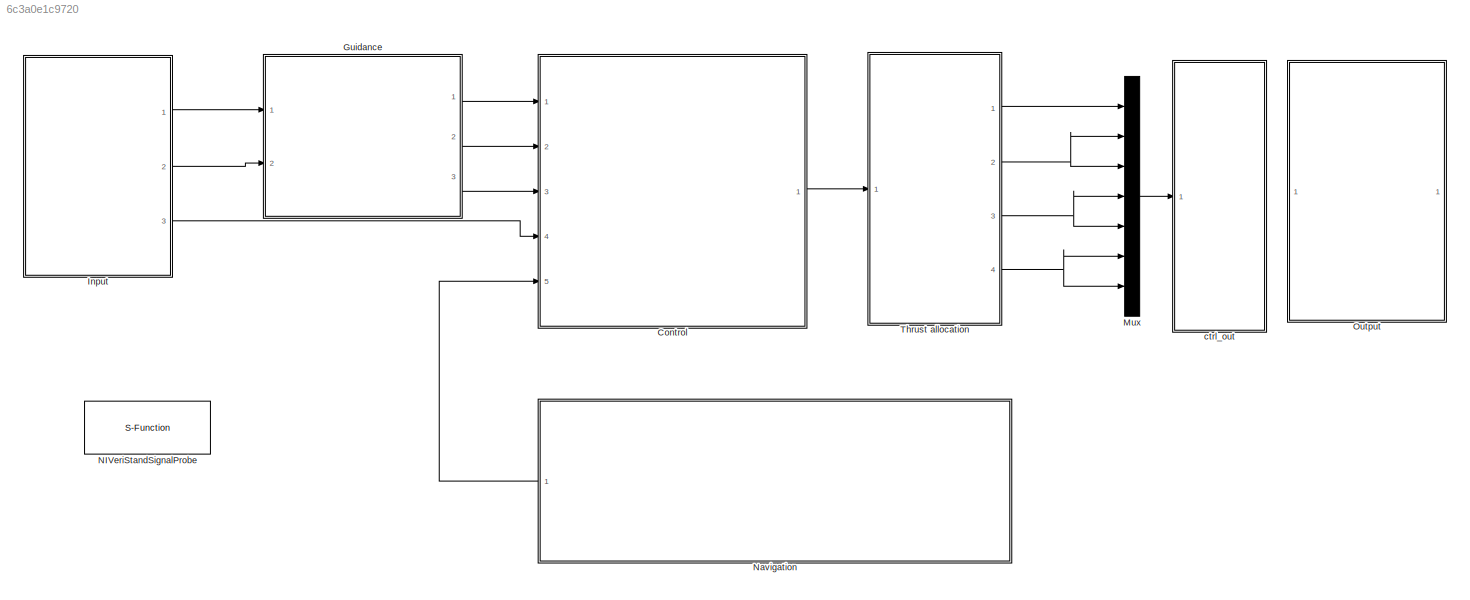
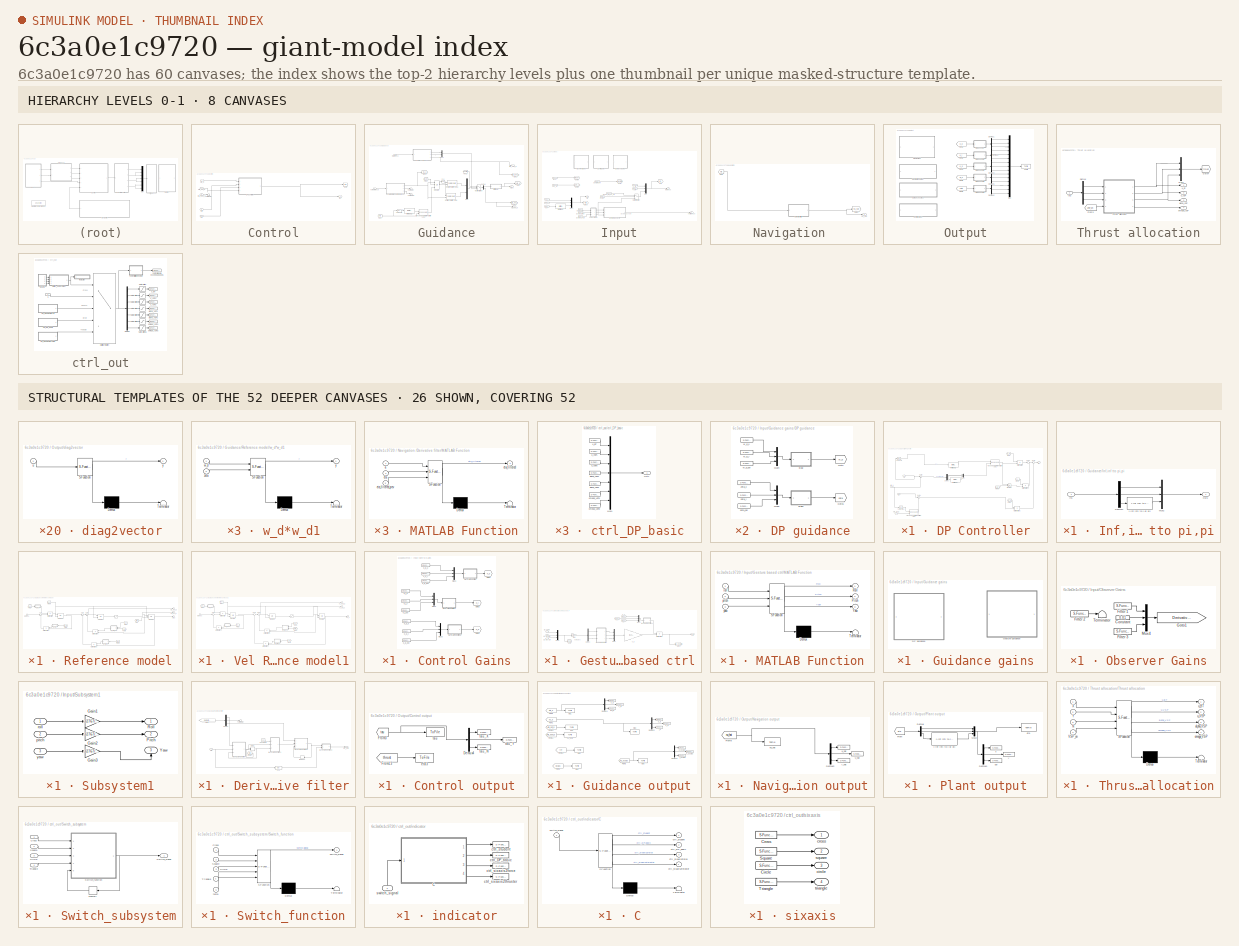
[diagram: thumbnail index - top-2 hierarchy levels (8 canvases) + 26 structural-template representatives of the remaining 52 canvases]
MODEL slx_6c3a0e1c9720
KIND model
BLOCK [SubSystem] Control
  Ports = [5, 1]
  RequestExecContextInheritance = off
BLOCK [SubSystem] Control/DP Controller
  Ports = [4, 1]
  RequestExecContextInheritance = off
BLOCK [Demux] Control/DP Controller/Demux
  DisplayOption = bar
  Outputs = 3
  Ports = [1, 3]
BLOCK [From] Control/DP Controller/From
  GotoTag = K_p
  TagVisibility = global
BLOCK [From] Control/DP Controller/From1
  GotoTag = K_i
  TagVisibility = global
BLOCK [From] Control/DP Controller/From2
  GotoTag = K_d
  TagVisibility = global
BLOCK [From] Control/DP Controller/From3
  GotoTag = reset
  TagVisibility = global
BLOCK [Integrator] Control/DP Controller/Integrator
  ExternalReset = either
  Ports = [2, 1]
BLOCK [Product] Control/DP Controller/Matrix Multiply
  InputSameDT = off
  Multiplication = Matrix(*)
  OutDataTypeStr = Inherit: Inherit via internal rule
  Ports = [2, 1]
  RndMeth = Floor
  SaturateOnIntegerOverflow = off
BLOCK [Product] Control/DP Controller/Matrix Multiply1
  InputSameDT = off
  Multiplication = Matrix(*)
  OutDataTypeStr = Inherit: Inherit via internal rule
  Ports = [2, 1]
  RndMeth = Floor
  SaturateOnIntegerOverflow = off
BLOCK [Product] Control/DP Controller/Matrix Multiply2
  InputSameDT = off
  Multiplication = Matrix(*)
  OutDataTypeStr = Inherit: Inherit via internal rule
  Ports = [2, 1]
  RndMeth = Floor
  SaturateOnIntegerOverflow = off
BLOCK [Mux] Control/DP Controller/Mux
  DisplayOption = bar
  Inputs = 3
  Ports = [3, 1]
BLOCK [Sum] Control/DP Controller/Sum1
  IconShape = round
  Inputs = |++
  Ports = [2, 1]
BLOCK [Sum] Control/DP Controller/Sum2
  IconShape = round
  Inputs = |-+
  Ports = [2, 1]
BLOCK [Sum] Control/DP Controller/Sum3
  IconShape = round
  Inputs = |++
  Ports = [2, 1]
BLOCK [Sum] Control/DP Controller/Sum4
  IconShape = round
  Inputs = |-+
  Ports = [2, 1]
BLOCK [Reference] Control/DP Controller/Transposed rotation matrix in yaw1  REF=marine_gnc/Models/ Kinematics/Transposed rotation  (lib defined in mdl_10d96c221ba8, mdl_45f1105420c6)
 matrix in yaw
  Ports = [2, 1]
  SourceBlock = marine_gnc/Models/ Kinematics/Transposed rotation\n matrix in yaw
BLOCK [Reference] Control/DP Controller/Transposed rotation matrix in yaw2  REF=marine_gnc/Models/ Kinematics/Transposed rotation  (lib defined in mdl_10d96c221ba8, mdl_45f1105420c6)
 matrix in yaw
  Ports = [2, 1]
  SourceBlock = marine_gnc/Models/ Kinematics/Transposed rotation\n matrix in yaw
BLOCK [Reference] Control/DP Controller/[-inf inf] to [-pi pi]  REF=marine_gnc/Utilities/Math Operations/[-inf inf] to [-pi pi]  (lib defined in mdl_10d96c221ba8, mdl_45f1105420c6)
  Ports = [1, 1]
  SourceBlock = marine_gnc/Utilities/Math Operations/[-inf inf] to [-pi pi]
  SourceType = [-inf inf] to [-pi pi]
BLOCK [Reference] Control/DP Controller/[-inf inf] to [-pi pi]1  REF=marine_gnc/Utilities/Math Operations/[-inf inf] to [-pi pi]  (lib defined in mdl_10d96c221ba8, mdl_45f1105420c6)
  Ports = [1, 1]
  SourceBlock = marine_gnc/Utilities/Math Operations/[-inf inf] to [-pi pi]
  SourceType = [-inf inf] to [-pi pi]
BLOCK [Inport] Control/DP Controller/eta
  IconDisplay = Port number
  Port = 2
BLOCK [Inport] Control/DP Controller/eta_d
  IconDisplay = Port number
BLOCK [Inport] Control/DP Controller/eta_dot_d
  IconDisplay = Port number
  Port = 4
BLOCK [Inport] Control/DP Controller/nu
  IconDisplay = Port number
  Port = 3
BLOCK [Outport] Control/DP Controller/tau
  IconDisplay = Port number
  InitialOutput = 0
BLOCK [Fcn] Control/DP Controller/yaw angle
  Expr = u(3)
BLOCK [Fcn] Control/DP Controller/yaw angle1
  Expr = u(3)
BLOCK [Goto] Control/Goto
  GotoTag = tau
  TagVisibility = global
BLOCK [Terminator] Control/Terminator
BLOCK [Inport] Control/eta
  IconDisplay = Port number
  Port = 4
BLOCK [Inport] Control/eta_d
  IconDisplay = Port number
BLOCK [Inport] Control/eta_ddot_d
  IconDisplay = Port number
  Port = 3
BLOCK [Inport] Control/eta_dot_d
  IconDisplay = Port number
  Port = 2
BLOCK [Inport] Control/nu
  IconDisplay = Port number
  Port = 5
BLOCK [Outport] Control/tau
  IconDisplay = Port number
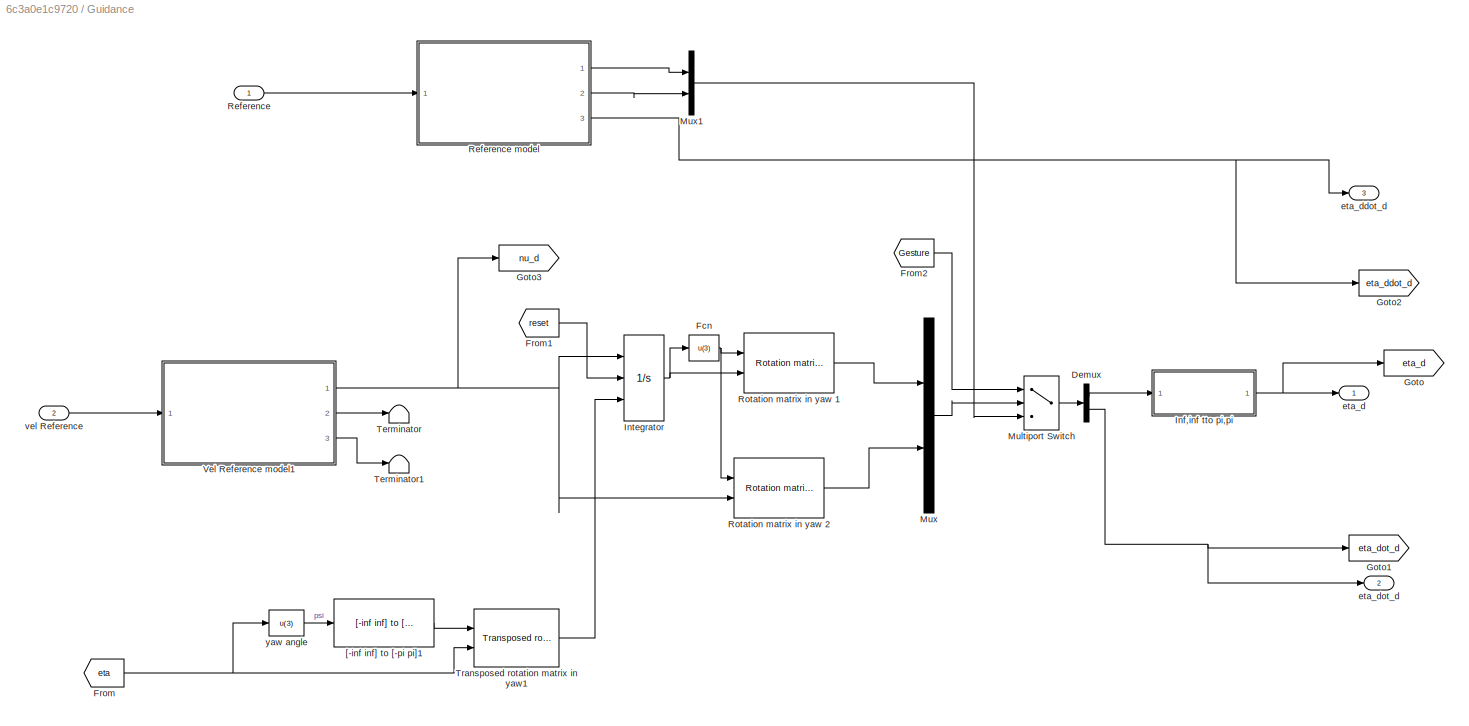
BLOCK [SubSystem] Guidance
  Ports = [2, 3]
  RequestExecContextInheritance = off
BLOCK [Demux] Guidance/Demux
  DisplayOption = bar
  Outputs = 2
  Ports = [1, 2]
BLOCK [Fcn] Guidance/Fcn
  Expr = u(3)
BLOCK [From] Guidance/From
  GotoTag = eta
  TagVisibility = global
BLOCK [From] Guidance/From1
  GotoTag = reset
  TagVisibility = global
BLOCK [From] Guidance/From2
  GotoTag = Gesture
  TagVisibility = global
BLOCK [Goto] Guidance/Goto
  GotoTag = eta_d
  TagVisibility = global
BLOCK [Goto] Guidance/Goto1
  GotoTag = eta_dot_d
  TagVisibility = global
BLOCK [Goto] Guidance/Goto2
  GotoTag = eta_ddot_d
  TagVisibility = global
BLOCK [Goto] Guidance/Goto3
  GotoTag = nu_d
  TagVisibility = global
BLOCK [SubSystem] Guidance/Inf,inf tto pi,pi
  Ports = [1, 1]
  RequestExecContextInheritance = off
BLOCK [Demux] Guidance/Inf,inf tto pi,pi/Demux1
  DisplayOption = bar
  Outputs = 3
  Ports = [1, 3]
BLOCK [Inport] Guidance/Inf,inf tto pi,pi/In1
  IconDisplay = Port number
BLOCK [Mux] Guidance/Inf,inf tto pi,pi/Mux2
  DisplayOption = bar
  Inputs = 3
  Ports = [3, 1]
BLOCK [Outport] Guidance/Inf,inf tto pi,pi/Out1
  IconDisplay = Port number
BLOCK [Reference] Guidance/Inf,inf tto pi,pi/[-inf inf] to [-pi pi]  REF=marine_gnc/Utilities/Math Operations/[-inf inf] to [-pi pi]  (lib defined in mdl_10d96c221ba8, mdl_45f1105420c6)
  Ports = [1, 1]
  SourceBlock = marine_gnc/Utilities/Math Operations/[-inf inf] to [-pi pi]
  SourceType = [-inf inf] to [-pi pi]
BLOCK [Integrator] Guidance/Integrator
  ExternalReset = either
  InitialConditionSource = external
  Ports = [3, 1]
BLOCK [MultiPortSwitch] Guidance/Multiport Switch
  DataPortOrder = Zero-based contiguous
  InputSameDT = off
  Inputs = 2
  Ports = [3, 1]
  SaturateOnIntegerOverflow = off
BLOCK [Mux] Guidance/Mux
  DisplayOption = bar
  Inputs = 2
  Ports = [2, 1]
BLOCK [Mux] Guidance/Mux1
  DisplayOption = bar
  Inputs = 2
  Ports = [2, 1]
BLOCK [Inport] Guidance/Reference 
  IconDisplay = Port number
BLOCK [SubSystem] Guidance/Reference model
  Ports = [1, 3]
  RequestExecContextInheritance = off
BLOCK [Saturate] Guidance/Reference model/       
  Commented = through
  InputPortMap = u0
  LowerLimit = -[0.3 0.1 1]
  Ports = [1, 1]
  UpperLimit = [0.3 0.1 1]
BLOCK [From] Guidance/Reference model/From
  GotoTag = eta
  TagVisibility = global
BLOCK [From] Guidance/Reference model/From1
  GotoTag = reset
  TagVisibility = global
BLOCK [From] Guidance/Reference model/From2
  GotoTag = w_d
  TagVisibility = global
BLOCK [From] Guidance/Reference model/From3
  GotoTag = w_d
  TagVisibility = global
BLOCK [From] Guidance/Reference model/From4
  GotoTag = w_d
  TagVisibility = global
BLOCK [From] Guidance/Reference model/From5
  GotoTag = w_d
  TagVisibility = global
BLOCK [From] Guidance/Reference model/From6
  GotoTag = zeta
  TagVisibility = global
BLOCK [Integrator] Guidance/Reference model/Integrator1
  ExternalReset = either
  InitialConditionSource = external
  Ports = [3, 1]
BLOCK [Integrator] Guidance/Reference model/Integrator2
  ExternalReset = either
  Ports = [2, 1]
BLOCK [Integrator] Guidance/Reference model/Integrator3
  ExternalReset = either
  Ports = [2, 1]
BLOCK [Product] Guidance/Reference model/Matrix Multiply
  InputSameDT = off
  Multiplication = Matrix(*)
  OutDataTypeStr = Inherit: Inherit via internal rule
  Ports = [2, 1]
  RndMeth = Floor
  SaturateOnIntegerOverflow = off
BLOCK [Product] Guidance/Reference model/Matrix Multiply1
  InputSameDT = off
  Multiplication = Matrix(*)
  OutDataTypeStr = Inherit: Inherit via internal rule
  Ports = [2, 1]
  RndMeth = Floor
  SaturateOnIntegerOverflow = off
BLOCK [Product] Guidance/Reference model/Matrix Multiply2
  InputSameDT = off
  Multiplication = Matrix(*)
  OutDataTypeStr = Inherit: Inherit via internal rule
  Ports = [2, 1]
  RndMeth = Floor
  SaturateOnIntegerOverflow = off
BLOCK [Product] Guidance/Reference model/Matrix Multiply5
  InputSameDT = off
  Multiplication = Matrix(*)
  OutDataTypeStr = Inherit: Inherit via internal rule
  Ports = [2, 1]
  RndMeth = Floor
  SaturateOnIntegerOverflow = off
BLOCK [Sum] Guidance/Reference model/Sum
  IconShape = round
  InputSameDT = off
  Inputs = |+-
  OutDataTypeStr = Inherit: Inherit via internal rule
  Ports = [2, 1]
  SaturateOnIntegerOverflow = off
BLOCK [Sum] Guidance/Reference model/Sum2
  IconShape = round
  Inputs = |+-
  Ports = [2, 1]
BLOCK [Sum] Guidance/Reference model/Sum5
  IconShape = round
  Inputs = |+-
  Ports = [2, 1]
BLOCK [Outport] Guidance/Reference model/eta_d
  IconDisplay = Port number
  InitialOutput = 0
BLOCK [Outport] Guidance/Reference model/eta_ddot_d
  IconDisplay = Port number
  InitialOutput = 0
  Port = 3
BLOCK [Outport] Guidance/Reference model/eta_dot_d
  IconDisplay = Port number
  InitialOutput = 0
  Port = 2
BLOCK [Inport] Guidance/Reference model/reference
  IconDisplay = Port number
BLOCK [SubSystem] Guidance/Reference model/w_d*w_d
  ErrorFcn = Stateflow.Translate.translate
  PermitHierarchicalResolution = ExplicitOnly
  Ports = [1, 1]
  RequestExecContextInheritance = off
  SFBlockType = MATLAB Function
  TreatAsAtomicUnit = on
BLOCK [Demux] Guidance/Reference model/w_d*w_d/ Demux 
  Outputs = 1
  Ports = [1, 1]
BLOCK [S-Function] Guidance/Reference model/w_d*w_d/ SFunction 
  EnableBusSupport = on
  FunctionName = sf_sfun
  PortCounts = [1 2]
  Ports = [1, 2]
  Tag = Stateflow S-Function CSE1_Oculus_gesture 3
BLOCK [Terminator] Guidance/Reference model/w_d*w_d/ Terminator 
BLOCK [Inport] Guidance/Reference model/w_d*w_d/w_d
  IconDisplay = Port number
BLOCK [Outport] Guidance/Reference model/w_d*w_d/y
  IconDisplay = Port number
BLOCK [SubSystem] Guidance/Reference model/w_d*w_d1
  ErrorFcn = Stateflow.Translate.translate
  PermitHierarchicalResolution = ExplicitOnly
  Ports = [2, 1]
  RequestExecContextInheritance = off
  SFBlockType = MATLAB Function
  TreatAsAtomicUnit = on
BLOCK [Demux] Guidance/Reference model/w_d*w_d1/ Demux 
  Outputs = 1
  Ports = [1, 1]
BLOCK [S-Function] Guidance/Reference model/w_d*w_d1/ SFunction 
  EnableBusSupport = on
  FunctionName = sf_sfun
  PortCounts = [2 2]
  Ports = [2, 2]
  Tag = Stateflow S-Function CSE1_Oculus_gesture 4
BLOCK [Terminator] Guidance/Reference model/w_d*w_d1/ Terminator 
BLOCK [Inport] Guidance/Reference model/w_d*w_d1/w_d
  IconDisplay = Port number
BLOCK [Outport] Guidance/Reference model/w_d*w_d1/y
  IconDisplay = Port number
BLOCK [Inport] Guidance/Reference model/w_d*w_d1/zeta
  IconDisplay = Port number
  Port = 2
BLOCK [SubSystem] Guidance/Reference model/w_d^-2
  ErrorFcn = Stateflow.Translate.translate
  PermitHierarchicalResolution = ExplicitOnly
  Ports = [1, 1]
  RequestExecContextInheritance = off
  SFBlockType = MATLAB Function
  TreatAsAtomicUnit = on
BLOCK [Demux] Guidance/Reference model/w_d^-2/ Demux 
  Outputs = 1
  Ports = [1, 1]
BLOCK [S-Function] Guidance/Reference model/w_d^-2/ SFunction 
  EnableBusSupport = on
  FunctionName = sf_sfun
  PortCounts = [1 2]
  Ports = [1, 2]
  Tag = Stateflow S-Function CSE1_Oculus_gesture 2
BLOCK [Terminator] Guidance/Reference model/w_d^-2/ Terminator 
BLOCK [Inport] Guidance/Reference model/w_d^-2/w_d
  IconDisplay = Port number
BLOCK [Outport] Guidance/Reference model/w_d^-2/y
  IconDisplay = Port number
BLOCK [SubSystem] Guidance/Reference model/w_d^3
  ErrorFcn = Stateflow.Translate.translate
  PermitHierarchicalResolution = ExplicitOnly
  Ports = [1, 1]
  RequestExecContextInheritance = off
  SFBlockType = MATLAB Function
  TreatAsAtomicUnit = on
BLOCK [Demux] Guidance/Reference model/w_d^3/ Demux 
  Outputs = 1
  Ports = [1, 1]
BLOCK [S-Function] Guidance/Reference model/w_d^3/ SFunction 
  EnableBusSupport = on
  FunctionName = sf_sfun
  PortCounts = [1 2]
  Ports = [1, 2]
  Tag = Stateflow S-Function CSE1_Oculus_gesture 1
BLOCK [Terminator] Guidance/Reference model/w_d^3/ Terminator 
BLOCK [Inport] Guidance/Reference model/w_d^3/w_d
  IconDisplay = Port number
BLOCK [Outport] Guidance/Reference model/w_d^3/y
  IconDisplay = Port number
BLOCK [Reference] Guidance/Rotation matrix in yaw 1  REF=marine_gnc/Models/ Kinematics/Rotation matrix  (lib defined in mdl_10d96c221ba8, mdl_45f1105420c6)
in yaw 
  Ports = [2, 1]
  SourceBlock = marine_gnc/Models/ Kinematics/Rotation matrix\nin yaw
BLOCK [Reference] Guidance/Rotation matrix in yaw 2  REF=marine_gnc/Models/ Kinematics/Rotation matrix  (lib defined in mdl_10d96c221ba8, mdl_45f1105420c6)
in yaw 
  Ports = [2, 1]
  SourceBlock = marine_gnc/Models/ Kinematics/Rotation matrix\nin yaw
BLOCK [Terminator] Guidance/Terminator
BLOCK [Terminator] Guidance/Terminator1
BLOCK [Reference] Guidance/Transposed rotation matrix in yaw1  REF=marine_gnc/Models/ Kinematics/Transposed rotation  (lib defined in mdl_10d96c221ba8, mdl_45f1105420c6)
 matrix in yaw
  Ports = [2, 1]
  SourceBlock = marine_gnc/Models/ Kinematics/Transposed rotation\n matrix in yaw
BLOCK [SubSystem] Guidance/Vel Reference model1
  Ports = [1, 3]
  RequestExecContextInheritance = off
BLOCK [Saturate] Guidance/Vel Reference model1/       
  Commented = through
  InputPortMap = u0
  LowerLimit = -v_max
  Ports = [1, 1]
  UpperLimit = v_max
BLOCK [From] Guidance/Vel Reference model1/From1
  GotoTag = reset
  TagVisibility = global
BLOCK [From] Guidance/Vel Reference model1/From2
  GotoTag = w_d_2
  TagVisibility = global
BLOCK [From] Guidance/Vel Reference model1/From3
  GotoTag = w_d_2
  TagVisibility = global
BLOCK [From] Guidance/Vel Reference model1/From4
  GotoTag = w_d_2
  TagVisibility = global
BLOCK [From] Guidance/Vel Reference model1/From5
  GotoTag = w_d_2
  TagVisibility = global
BLOCK [From] Guidance/Vel Reference model1/From6
  GotoTag = zeta_2
  TagVisibility = global
BLOCK [Integrator] Guidance/Vel Reference model1/Integrator1
  ExternalReset = either
  Ports = [2, 1]
BLOCK [Integrator] Guidance/Vel Reference model1/Integrator2
  ExternalReset = either
  Ports = [2, 1]
BLOCK [Integrator] Guidance/Vel Reference model1/Integrator3
  ExternalReset = either
  Ports = [2, 1]
BLOCK [Product] Guidance/Vel Reference model1/Matrix Multiply
  InputSameDT = off
  Multiplication = Matrix(*)
  OutDataTypeStr = Inherit: Inherit via internal rule
  Ports = [2, 1]
  RndMeth = Floor
  SaturateOnIntegerOverflow = off
BLOCK [Product] Guidance/Vel Reference model1/Matrix Multiply1
  InputSameDT = off
  Multiplication = Matrix(*)
  OutDataTypeStr = Inherit: Inherit via internal rule
  Ports = [2, 1]
  RndMeth = Floor
  SaturateOnIntegerOverflow = off
BLOCK [Product] Guidance/Vel Reference model1/Matrix Multiply2
  InputSameDT = off
  Multiplication = Matrix(*)
  OutDataTypeStr = Inherit: Inherit via internal rule
  Ports = [2, 1]
  RndMeth = Floor
  SaturateOnIntegerOverflow = off
BLOCK [Product] Guidance/Vel Reference model1/Matrix Multiply5
  InputSameDT = off
  Multiplication = Matrix(*)
  OutDataTypeStr = Inherit: Inherit via internal rule
  Ports = [2, 1]
  RndMeth = Floor
  SaturateOnIntegerOverflow = off
BLOCK [Sum] Guidance/Vel Reference model1/Sum
  IconShape = round
  InputSameDT = off
  Inputs = |+-
  OutDataTypeStr = Inherit: Inherit via internal rule
  Ports = [2, 1]
  SaturateOnIntegerOverflow = off
BLOCK [Sum] Guidance/Vel Reference model1/Sum2
  IconShape = round
  Inputs = |+-
  Ports = [2, 1]
BLOCK [Sum] Guidance/Vel Reference model1/Sum5
  IconShape = round
  Inputs = |+-
  Ports = [2, 1]
BLOCK [Outport] Guidance/Vel Reference model1/nu_d
  IconDisplay = Port number
  InitialOutput = 0
BLOCK [Outport] Guidance/Vel Reference model1/nu_ddot_d
  IconDisplay = Port number
  InitialOutput = 0
  Port = 3
BLOCK [Outport] Guidance/Vel Reference model1/nu_dot_d
  IconDisplay = Port number
  InitialOutput = 0
  Port = 2
BLOCK [Inport] Guidance/Vel Reference model1/reference
  IconDisplay = Port number
BLOCK [SubSystem] Guidance/Vel Reference model1/w_d*w_d
  ErrorFcn = Stateflow.Translate.translate
  PermitHierarchicalResolution = ExplicitOnly
  Ports = [1, 1]
  RequestExecContextInheritance = off
  SFBlockType = MATLAB Function
  TreatAsAtomicUnit = on
BLOCK [Demux] Guidance/Vel Reference model1/w_d*w_d/ Demux 
  Outputs = 1
  Ports = [1, 1]
BLOCK [S-Function] Guidance/Vel Reference model1/w_d*w_d/ SFunction 
  EnableBusSupport = on
  FunctionName = sf_sfun
  PortCounts = [1 2]
  Ports = [1, 2]
  Tag = Stateflow S-Function CSE1_Oculus_gesture 7
BLOCK [Terminator] Guidance/Vel Reference model1/w_d*w_d/ Terminator 
BLOCK [Inport] Guidance/Vel Reference model1/w_d*w_d/w_d
  IconDisplay = Port number
BLOCK [Outport] Guidance/Vel Reference model1/w_d*w_d/y
  IconDisplay = Port number
BLOCK [SubSystem] Guidance/Vel Reference model1/w_d*w_d1
  ErrorFcn = Stateflow.Translate.translate
  PermitHierarchicalResolution = ExplicitOnly
  Ports = [2, 1]
  RequestExecContextInheritance = off
  SFBlockType = MATLAB Function
  TreatAsAtomicUnit = on
BLOCK [Demux] Guidance/Vel Reference model1/w_d*w_d1/ Demux 
  Outputs = 1
  Ports = [1, 1]
BLOCK [S-Function] Guidance/Vel Reference model1/w_d*w_d1/ SFunction 
  EnableBusSupport = on
  FunctionName = sf_sfun
  PortCounts = [2 2]
  Ports = [2, 2]
  Tag = Stateflow S-Function CSE1_Oculus_gesture 8
BLOCK [Terminator] Guidance/Vel Reference model1/w_d*w_d1/ Terminator 
BLOCK [Inport] Guidance/Vel Reference model1/w_d*w_d1/w_d
  IconDisplay = Port number
BLOCK [Outport] Guidance/Vel Reference model1/w_d*w_d1/y
  IconDisplay = Port number
BLOCK [Inport] Guidance/Vel Reference model1/w_d*w_d1/zeta
  IconDisplay = Port number
  Port = 2
BLOCK [SubSystem] Guidance/Vel Reference model1/w_d^-2
  ErrorFcn = Stateflow.Translate.translate
  PermitHierarchicalResolution = ExplicitOnly
  Ports = [1, 1]
  RequestExecContextInheritance = off
  SFBlockType = MATLAB Function
  TreatAsAtomicUnit = on
BLOCK [Demux] Guidance/Vel Reference model1/w_d^-2/ Demux 
  Outputs = 1
  Ports = [1, 1]
BLOCK [S-Function] Guidance/Vel Reference model1/w_d^-2/ SFunction 
  EnableBusSupport = on
  FunctionName = sf_sfun
  PortCounts = [1 2]
  Ports = [1, 2]
  Tag = Stateflow S-Function CSE1_Oculus_gesture 10
BLOCK [Terminator] Guidance/Vel Reference model1/w_d^-2/ Terminator 
BLOCK [Inport] Guidance/Vel Reference model1/w_d^-2/w_d
  IconDisplay = Port number
BLOCK [Outport] Guidance/Vel Reference model1/w_d^-2/y
  IconDisplay = Port number
BLOCK [SubSystem] Guidance/Vel Reference model1/w_d^3
  ErrorFcn = Stateflow.Translate.translate
  PermitHierarchicalResolution = ExplicitOnly
  Ports = [1, 1]
  RequestExecContextInheritance = off
  SFBlockType = MATLAB Function
  TreatAsAtomicUnit = on
BLOCK [Demux] Guidance/Vel Reference model1/w_d^3/ Demux 
  Outputs = 1
  Ports = [1, 1]
BLOCK [S-Function] Guidance/Vel Reference model1/w_d^3/ SFunction 
  EnableBusSupport = on
  FunctionName = sf_sfun
  PortCounts = [1 2]
  Ports = [1, 2]
  Tag = Stateflow S-Function CSE1_Oculus_gesture 36
BLOCK [Terminator] Guidance/Vel Reference model1/w_d^3/ Terminator 
BLOCK [Inport] Guidance/Vel Reference model1/w_d^3/w_d
  IconDisplay = Port number
BLOCK [Outport] Guidance/Vel Reference model1/w_d^3/y
  IconDisplay = Port number
BLOCK [Reference] Guidance/[-inf inf] to [-pi pi]1  REF=marine_gnc/Utilities/Math Operations/[-inf inf] to [-pi pi]  (lib defined in mdl_10d96c221ba8, mdl_45f1105420c6)
  Ports = [1, 1]
  SourceBlock = marine_gnc/Utilities/Math Operations/[-inf inf] to [-pi pi]
  SourceType = [-inf inf] to [-pi pi]
BLOCK [Outport] Guidance/eta_d
  IconDisplay = Port number
BLOCK [Outport] Guidance/eta_ddot_d
  IconDisplay = Port number
  Port = 3
BLOCK [Outport] Guidance/eta_dot_d
  IconDisplay = Port number
  Port = 2
BLOCK [Inport] Guidance/vel Reference 
  IconDisplay = Port number
  Port = 2
BLOCK [Fcn] Guidance/yaw angle
  Expr = u(3)
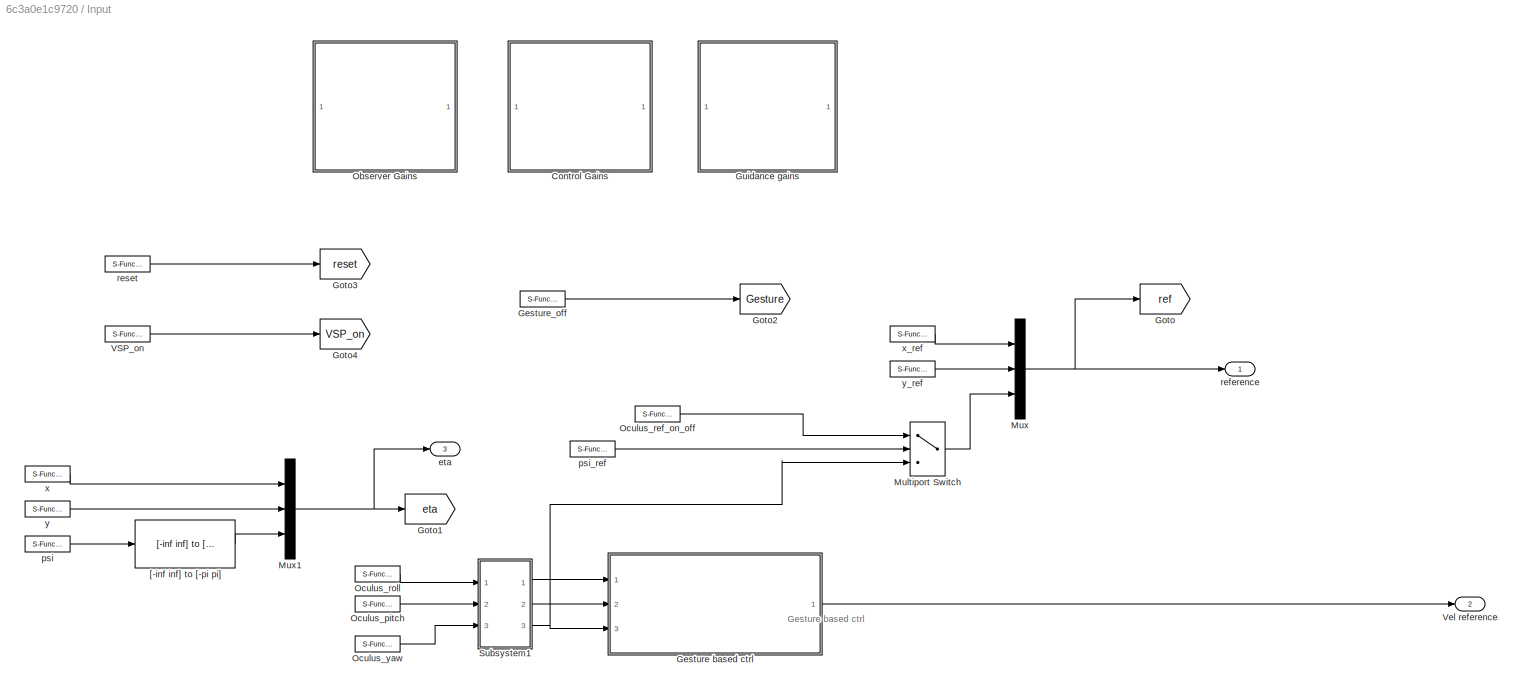
BLOCK [SubSystem] Input
  Ports = [0, 3]
  RequestExecContextInheritance = off
BLOCK [SubSystem] Input/Control Gains
  Ports = []
  RequestExecContextInheritance = off
BLOCK [Goto] Input/Control Gains/Goto2
  GotoTag = K_p
  TagVisibility = global
BLOCK [Goto] Input/Control Gains/Goto3
  GotoTag = K_i
  TagVisibility = global
BLOCK [Goto] Input/Control Gains/Goto4
  GotoTag = K_d
  TagVisibility = global
BLOCK [S-Function] Input/Control Gains/K_d_psi
  CopyFcn = NIVeriStand_MDL_functions('', 'IO_copy');
  DeleteFcn = NIVeriStand_MDL_functions('', 'IO_delete');
  EnableBusSupport = off
  FunctionName = NIVeriStandIO
  MoveFcn = set_param(gcb, 'Mask', 'on');
  Parameters = width dtype portnum stime stype btype
  Ports = [0, 1]
  Priority = 7
BLOCK [S-Function] Input/Control Gains/K_d_x
  CopyFcn = NIVeriStand_MDL_functions('', 'IO_copy');
  DeleteFcn = NIVeriStand_MDL_functions('', 'IO_delete');
  EnableBusSupport = off
  FunctionName = NIVeriStandIO
  MoveFcn = set_param(gcb, 'Mask', 'on');
  Parameters = width dtype portnum stime stype btype
  Ports = [0, 1]
  Priority = 8
BLOCK [S-Function] Input/Control Gains/K_d_y
  CopyFcn = NIVeriStand_MDL_functions('', 'IO_copy');
  DeleteFcn = NIVeriStand_MDL_functions('', 'IO_delete');
  EnableBusSupport = off
  FunctionName = NIVeriStandIO
  MoveFcn = set_param(gcb, 'Mask', 'on');
  Parameters = width dtype portnum stime stype btype
  Ports = [0, 1]
  Priority = 9
BLOCK [S-Function] Input/Control Gains/K_i_psi
  CopyFcn = NIVeriStand_MDL_functions('', 'IO_copy');
  DeleteFcn = NIVeriStand_MDL_functions('', 'IO_delete');
  EnableBusSupport = off
  FunctionName = NIVeriStandIO
  MoveFcn = set_param(gcb, 'Mask', 'on');
  Parameters = width dtype portnum stime stype btype
  Ports = [0, 1]
  Priority = 4
BLOCK [S-Function] Input/Control Gains/K_i_x
  CopyFcn = NIVeriStand_MDL_functions('', 'IO_copy');
  DeleteFcn = NIVeriStand_MDL_functions('', 'IO_delete');
  EnableBusSupport = off
  FunctionName = NIVeriStandIO
  MoveFcn = set_param(gcb, 'Mask', 'on');
  Parameters = width dtype portnum stime stype btype
  Ports = [0, 1]
  Priority = 5
BLOCK [S-Function] Input/Control Gains/K_i_y
  CopyFcn = NIVeriStand_MDL_functions('', 'IO_copy');
  DeleteFcn = NIVeriStand_MDL_functions('', 'IO_delete');
  EnableBusSupport = off
  FunctionName = NIVeriStandIO
  MoveFcn = set_param(gcb, 'Mask', 'on');
  Parameters = width dtype portnum stime stype btype
  Ports = [0, 1]
  Priority = 6
BLOCK [S-Function] Input/Control Gains/K_p_psi
  CopyFcn = NIVeriStand_MDL_functions('', 'IO_copy');
  DeleteFcn = NIVeriStand_MDL_functions('', 'IO_delete');
  EnableBusSupport = off
  FunctionName = NIVeriStandIO
  MoveFcn = set_param(gcb, 'Mask', 'on');
  Parameters = width dtype portnum stime stype btype
  Ports = [0, 1]
  Priority = 3
BLOCK [S-Function] Input/Control Gains/K_p_x
  CopyFcn = NIVeriStand_MDL_functions('', 'IO_copy');
  DeleteFcn = NIVeriStand_MDL_functions('', 'IO_delete');
  EnableBusSupport = off
  FunctionName = NIVeriStandIO
  MoveFcn = set_param(gcb, 'Mask', 'on');
  Parameters = width dtype portnum stime stype btype
  Ports = [0, 1]
  Priority = 1
BLOCK [S-Function] Input/Control Gains/K_p_y
  CopyFcn = NIVeriStand_MDL_functions('', 'IO_copy');
  DeleteFcn = NIVeriStand_MDL_functions('', 'IO_delete');
  EnableBusSupport = off
  FunctionName = NIVeriStandIO
  MoveFcn = set_param(gcb, 'Mask', 'on');
  Parameters = width dtype portnum stime stype btype
  Ports = [0, 1]
  Priority = 2
BLOCK [SubSystem] Input/Control Gains/MATLAB Function
  ErrorFcn = Stateflow.Translate.translate
  PermitHierarchicalResolution = ExplicitOnly
  Ports = [1, 1]
  RequestExecContextInheritance = off
  SFBlockType = MATLAB Function
  TreatAsAtomicUnit = on
BLOCK [Demux] Input/Control Gains/MATLAB Function/ Demux 
  Outputs = 1
  Ports = [1, 1]
BLOCK [S-Function] Input/Control Gains/MATLAB Function/ SFunction 
  EnableBusSupport = on
  FunctionName = sf_sfun
  PortCounts = [1 2]
  Ports = [1, 2]
  Tag = Stateflow S-Function CSE1_Oculus_gesture 16
BLOCK [Terminator] Input/Control Gains/MATLAB Function/ Terminator 
BLOCK [Outport] Input/Control Gains/MATLAB Function/K_p
  IconDisplay = Port number
BLOCK [Inport] Input/Control Gains/MATLAB Function/K_p1
  IconDisplay = Port number
BLOCK [SubSystem] Input/Control Gains/MATLAB Function1
  ErrorFcn = Stateflow.Translate.translate
  PermitHierarchicalResolution = ExplicitOnly
  Ports = [1, 1]
  RequestExecContextInheritance = off
  SFBlockType = MATLAB Function
  TreatAsAtomicUnit = on
BLOCK [Demux] Input/Control Gains/MATLAB Function1/ Demux 
  Outputs = 1
  Ports = [1, 1]
BLOCK [S-Function] Input/Control Gains/MATLAB Function1/ SFunction 
  EnableBusSupport = on
  FunctionName = sf_sfun
  PortCounts = [1 2]
  Ports = [1, 2]
  Tag = Stateflow S-Function CSE1_Oculus_gesture 17
BLOCK [Terminator] Input/Control Gains/MATLAB Function1/ Terminator 
BLOCK [Outport] Input/Control Gains/MATLAB Function1/K_i
  IconDisplay = Port number
BLOCK [Inport] Input/Control Gains/MATLAB Function1/K_i1
  IconDisplay = Port number
BLOCK [SubSystem] Input/Control Gains/MATLAB Function2
  ErrorFcn = Stateflow.Translate.translate
  PermitHierarchicalResolution = ExplicitOnly
  Ports = [1, 1]
  RequestExecContextInheritance = off
  SFBlockType = MATLAB Function
  TreatAsAtomicUnit = on
BLOCK [Demux] Input/Control Gains/MATLAB Function2/ Demux 
  Outputs = 1
  Ports = [1, 1]
BLOCK [S-Function] Input/Control Gains/MATLAB Function2/ SFunction 
  EnableBusSupport = on
  FunctionName = sf_sfun
  PortCounts = [1 2]
  Ports = [1, 2]
  Tag = Stateflow S-Function CSE1_Oculus_gesture 18
BLOCK [Terminator] Input/Control Gains/MATLAB Function2/ Terminator 
BLOCK [Outport] Input/Control Gains/MATLAB Function2/K_d
  IconDisplay = Port number
BLOCK [Inport] Input/Control Gains/MATLAB Function2/K_d1
  IconDisplay = Port number
BLOCK [Mux] Input/Control Gains/Mux1
  DisplayOption = bar
  Inputs = 3
  Ports = [3, 1]
BLOCK [Mux] Input/Control Gains/Mux2
  DisplayOption = bar
  Inputs = 3
  Ports = [3, 1]
BLOCK [Mux] Input/Control Gains/Mux3
  DisplayOption = bar
  Inputs = 3
  Ports = [3, 1]
BLOCK [SubSystem] Input/Gesture based ctrl
  Ports = [3, 1]
  RequestExecContextInheritance = off
BLOCK [Demux] Input/Gesture based ctrl/Demux
  DisplayOption = bar
  Outputs = 3
  Ports = [1, 3]
BLOCK [Gain] Input/Gesture based ctrl/Gain
  Gain = 2/pi
  OutDataTypeStr = Inherit: Inherit via internal rule
  ParamDataTypeStr = Inherit: Inherit via internal rule
  SaturateOnIntegerOverflow = off
BLOCK [Goto] Input/Gesture based ctrl/Goto
  GotoTag = Oculus
  TagVisibility = global
BLOCK [Goto] Input/Gesture based ctrl/Goto1
  GotoTag = Nu_oculus
  TagVisibility = global
BLOCK [S-Function] Input/Gesture based ctrl/K_r
  CopyFcn = NIVeriStand_MDL_functions('', 'IO_copy');
  DeleteFcn = NIVeriStand_MDL_functions('', 'IO_delete');
  EnableBusSupport = off
  FunctionName = NIVeriStandIO
  MoveFcn = set_param(gcb, 'Mask', 'on');
  Parameters = width dtype portnum stime stype btype
  Ports = [0, 1]
  Priority = 3
BLOCK [S-Function] Input/Gesture based ctrl/K_u
  CopyFcn = NIVeriStand_MDL_functions('', 'IO_copy');
  DeleteFcn = NIVeriStand_MDL_functions('', 'IO_delete');
  EnableBusSupport = off
  FunctionName = NIVeriStandIO
  MoveFcn = set_param(gcb, 'Mask', 'on');
  Parameters = width dtype portnum stime stype btype
  Ports = [0, 1]
  Priority = 1
BLOCK [S-Function] Input/Gesture based ctrl/K_v
  CopyFcn = NIVeriStand_MDL_functions('', 'IO_copy');
  DeleteFcn = NIVeriStand_MDL_functions('', 'IO_delete');
  EnableBusSupport = off
  FunctionName = NIVeriStandIO
  MoveFcn = set_param(gcb, 'Mask', 'on');
  Parameters = width dtype portnum stime stype btype
  Ports = [0, 1]
  Priority = 2
BLOCK [SubSystem] Input/Gesture based ctrl/MATLAB Function
  ErrorFcn = Stateflow.Translate.translate
  PermitHierarchicalResolution = ExplicitOnly
  Ports = [3, 3]
  RequestExecContextInheritance = off
  SFBlockType = MATLAB Function
  TreatAsAtomicUnit = on
BLOCK [Demux] Input/Gesture based ctrl/MATLAB Function/ Demux 
  Outputs = 1
  Ports = [1, 1]
BLOCK [S-Function] Input/Gesture based ctrl/MATLAB Function/ SFunction 
  EnableBusSupport = on
  FunctionName = sf_sfun
  PortCounts = [3 4]
  Ports = [3, 4]
  Tag = Stateflow S-Function CSE1_Oculus_gesture 14
BLOCK [Terminator] Input/Gesture based ctrl/MATLAB Function/ Terminator 
BLOCK [Outport] Input/Gesture based ctrl/MATLAB Function/Pitch
  IconDisplay = Port number
  Port = 2
BLOCK [Outport] Input/Gesture based ctrl/MATLAB Function/Roll
  IconDisplay = Port number
BLOCK [Outport] Input/Gesture based ctrl/MATLAB Function/Yaw
  IconDisplay = Port number
  Port = 3
BLOCK [Inport] Input/Gesture based ctrl/MATLAB Function/pitch
  IconDisplay = Port number
  Port = 2
BLOCK [Inport] Input/Gesture based ctrl/MATLAB Function/roll
  IconDisplay = Port number
BLOCK [Inport] Input/Gesture based ctrl/MATLAB Function/yaw
  IconDisplay = Port number
  Port = 3
BLOCK [SubSystem] Input/Gesture based ctrl/MATLAB Function4
  ErrorFcn = Stateflow.Translate.translate
  PermitHierarchicalResolution = ExplicitOnly
  Ports = [1, 1]
  RequestExecContextInheritance = off
  SFBlockType = MATLAB Function
  TreatAsAtomicUnit = on
BLOCK [Demux] Input/Gesture based ctrl/MATLAB Function4/ Demux 
  Outputs = 1
  Ports = [1, 1]
BLOCK [S-Function] Input/Gesture based ctrl/MATLAB Function4/ SFunction 
  EnableBusSupport = on
  FunctionName = sf_sfun
  PortCounts = [1 2]
  Ports = [1, 2]
  Tag = Stateflow S-Function CSE1_Oculus_gesture 39
BLOCK [Terminator] Input/Gesture based ctrl/MATLAB Function4/ Terminator 
BLOCK [Outport] Input/Gesture based ctrl/MATLAB Function4/K_p
  IconDisplay = Port number
BLOCK [Inport] Input/Gesture based ctrl/MATLAB Function4/K_p1
  IconDisplay = Port number
BLOCK [Product] Input/Gesture based ctrl/Matrix Multiply
  InputSameDT = off
  Multiplication = Matrix(*)
  OutDataTypeStr = Inherit: Inherit via internal rule
  Ports = [2, 1]
  RndMeth = Floor
  SaturateOnIntegerOverflow = off
BLOCK [Mux] Input/Gesture based ctrl/Mux1
  DisplayOption = bar
  Inputs = 3
  Ports = [3, 1]
BLOCK [Mux] Input/Gesture based ctrl/Mux2
  DisplayOption = bar
  Inputs = 3
  Ports = [3, 1]
BLOCK [Mux] Input/Gesture based ctrl/Mux5
  DisplayOption = bar
  Inputs = 3
  Ports = [3, 1]
BLOCK [Inport] Input/Gesture based ctrl/Ocylus pitch
  IconDisplay = Port number
  Port = 2
BLOCK [Inport] Input/Gesture based ctrl/Ocylus roll
  IconDisplay = Port number
BLOCK [Inport] Input/Gesture based ctrl/Ocylus yaw
  IconDisplay = Port number
  Port = 3
BLOCK [Gain] Input/Gesture based ctrl/T_b
  Gain = [0 1 0; 1 0 0; 0 0 1];
  Multiplication = Matrix(K*u)
  OutDataTypeStr = Inherit: Inherit via internal rule
  ParamDataTypeStr = Inherit: Inherit via internal rule
  SaturateOnIntegerOverflow = off
BLOCK [Outport] Input/Gesture based ctrl/v^oc 
  IconDisplay = Port number
BLOCK [S-Function] Input/Gesture_off
  CopyFcn = NIVeriStand_MDL_functions('', 'IO_copy');
  DeleteFcn = NIVeriStand_MDL_functions('', 'IO_delete');
  EnableBusSupport = off
  FunctionName = NIVeriStandIO
  MoveFcn = set_param(gcb, 'Mask', 'on');
  Parameters = width dtype portnum stime stype btype
  Ports = [0, 1]
  Priority = 11
BLOCK [Goto] Input/Goto
  GotoTag = ref
  TagVisibility = global
BLOCK [Goto] Input/Goto1
  GotoTag = eta
  TagVisibility = global
BLOCK [Goto] Input/Goto2
  GotoTag = Gesture
  TagVisibility = global
BLOCK [Goto] Input/Goto3
  GotoTag = reset
  TagVisibility = global
BLOCK [Goto] Input/Goto4
  GotoTag = VSP_on
  TagVisibility = global
BLOCK [SubSystem] Input/Guidance gains
  Ports = []
  RequestExecContextInheritance = off
BLOCK [SubSystem] Input/Guidance gains/DP guidance
  Ports = []
  RequestExecContextInheritance = off
BLOCK [Goto] Input/Guidance gains/DP guidance/Goto
  GotoTag = w_d
  TagVisibility = global
BLOCK [Goto] Input/Guidance gains/DP guidance/Goto1
  GotoTag = zeta
  TagVisibility = global
BLOCK [Mux] Input/Guidance gains/DP guidance/Mux4
  DisplayOption = bar
  Inputs = 3
  Ports = [3, 1]
BLOCK [Mux] Input/Guidance gains/DP guidance/Mux5
  DisplayOption = bar
  Inputs = 3
  Ports = [3, 1]
BLOCK [SubSystem] Input/Guidance gains/DP guidance/diag
  ErrorFcn = Stateflow.Translate.translate
  PermitHierarchicalResolution = ExplicitOnly
  Ports = [1, 1]
  RequestExecContextInheritance = off
  SFBlockType = MATLAB Function
  TreatAsAtomicUnit = on
BLOCK [Demux] Input/Guidance gains/DP guidance/diag/ Demux 
  Outputs = 1
  Ports = [1, 1]
BLOCK [S-Function] Input/Guidance gains/DP guidance/diag/ SFunction 
  EnableBusSupport = on
  FunctionName = sf_sfun
  PortCounts = [1 2]
  Ports = [1, 2]
  Tag = Stateflow S-Function CSE1_Oculus_gesture 5
BLOCK [Terminator] Input/Guidance gains/DP guidance/diag/ Terminator 
BLOCK [Outport] Input/Guidance gains/DP guidance/diag/w_d
  IconDisplay = Port number
BLOCK [Inport] Input/Guidance gains/DP guidance/diag/w_d_vector
  IconDisplay = Port number
BLOCK [SubSystem] Input/Guidance gains/DP guidance/diag1
  ErrorFcn = Stateflow.Translate.translate
  PermitHierarchicalResolution = ExplicitOnly
  Ports = [1, 1]
  RequestExecContextInheritance = off
  SFBlockType = MATLAB Function
  TreatAsAtomicUnit = on
BLOCK [Demux] Input/Guidance gains/DP guidance/diag1/ Demux 
  Outputs = 1
  Ports = [1, 1]
BLOCK [S-Function] Input/Guidance gains/DP guidance/diag1/ SFunction 
  EnableBusSupport = on
  FunctionName = sf_sfun
  PortCounts = [1 2]
  Ports = [1, 2]
  Tag = Stateflow S-Function CSE1_Oculus_gesture 6
BLOCK [Terminator] Input/Guidance gains/DP guidance/diag1/ Terminator 
BLOCK [Outport] Input/Guidance gains/DP guidance/diag1/Zeta
  IconDisplay = Port number
BLOCK [Inport] Input/Guidance gains/DP guidance/diag1/zeta_vector
  IconDisplay = Port number
BLOCK [S-Function] Input/Guidance gains/DP guidance/w_d_psi
  CopyFcn = NIVeriStand_MDL_functions('', 'IO_copy');
  DeleteFcn = NIVeriStand_MDL_functions('', 'IO_delete');
  EnableBusSupport = off
  FunctionName = NIVeriStandIO
  MoveFcn = set_param(gcb, 'Mask', 'on');
  Parameters = width dtype portnum stime stype btype
  Ports = [0, 1]
  Priority = 2
BLOCK [S-Function] Input/Guidance gains/DP guidance/w_d_x
  CopyFcn = NIVeriStand_MDL_functions('', 'IO_copy');
  DeleteFcn = NIVeriStand_MDL_functions('', 'IO_delete');
  EnableBusSupport = off
  FunctionName = NIVeriStandIO
  MoveFcn = set_param(gcb, 'Mask', 'on');
  Parameters = width dtype portnum stime stype btype
  Ports = [0, 1]
  Priority = 3
BLOCK [S-Function] Input/Guidance gains/DP guidance/w_d_y
  CopyFcn = NIVeriStand_MDL_functions('', 'IO_copy');
  DeleteFcn = NIVeriStand_MDL_functions('', 'IO_delete');
  EnableBusSupport = off
  FunctionName = NIVeriStandIO
  MoveFcn = set_param(gcb, 'Mask', 'on');
  Parameters = width dtype portnum stime stype btype
  Ports = [0, 1]
  Priority = 4
BLOCK [S-Function] Input/Guidance gains/DP guidance/zeta_psi
  CopyFcn = NIVeriStand_MDL_functions('', 'IO_copy');
  DeleteFcn = NIVeriStand_MDL_functions('', 'IO_delete');
  EnableBusSupport = off
  FunctionName = NIVeriStandIO
  MoveFcn = set_param(gcb, 'Mask', 'on');
  Parameters = width dtype portnum stime stype btype
  Ports = [0, 1]
  Priority = 5
BLOCK [S-Function] Input/Guidance gains/DP guidance/zeta_x
  CopyFcn = NIVeriStand_MDL_functions('', 'IO_copy');
  DeleteFcn = NIVeriStand_MDL_functions('', 'IO_delete');
  EnableBusSupport = off
  FunctionName = NIVeriStandIO
  MoveFcn = set_param(gcb, 'Mask', 'on');
  Parameters = width dtype portnum stime stype btype
  Ports = [0, 1]
  Priority = 6
BLOCK [S-Function] Input/Guidance gains/DP guidance/zeta_y
  CopyFcn = NIVeriStand_MDL_functions('', 'IO_copy');
  DeleteFcn = NIVeriStand_MDL_functions('', 'IO_delete');
  EnableBusSupport = off
  FunctionName = NIVeriStandIO
  MoveFcn = set_param(gcb, 'Mask', 'on');
  Parameters = width dtype portnum stime stype btype
  Ports = [0, 1]
  Priority = 1
BLOCK [SubSystem] Input/Guidance gains/Gesture guidance
  Ports = []
  RequestExecContextInheritance = off
BLOCK [Goto] Input/Guidance gains/Gesture guidance/Goto
  GotoTag = w_d_2
  TagVisibility = global
BLOCK [Goto] Input/Guidance gains/Gesture guidance/Goto1
  GotoTag = zeta_2
  TagVisibility = global
BLOCK [Mux] Input/Guidance gains/Gesture guidance/Mux4
  DisplayOption = bar
  Inputs = 3
  Ports = [3, 1]
BLOCK [Mux] Input/Guidance gains/Gesture guidance/Mux5
  DisplayOption = bar
  Inputs = 3
  Ports = [3, 1]
BLOCK [SubSystem] Input/Guidance gains/Gesture guidance/diag
  ErrorFcn = Stateflow.Translate.translate
  PermitHierarchicalResolution = ExplicitOnly
  Ports = [1, 1]
  RequestExecContextInheritance = off
  SFBlockType = MATLAB Function
  TreatAsAtomicUnit = on
BLOCK [Demux] Input/Guidance gains/Gesture guidance/diag/ Demux 
  Outputs = 1
  Ports = [1, 1]
BLOCK [S-Function] Input/Guidance gains/Gesture guidance/diag/ SFunction 
  EnableBusSupport = on
  FunctionName = sf_sfun
  PortCounts = [1 2]
  Ports = [1, 2]
  Tag = Stateflow S-Function CSE1_Oculus_gesture 24
BLOCK [Terminator] Input/Guidance gains/Gesture guidance/diag/ Terminator 
BLOCK [Outport] Input/Guidance gains/Gesture guidance/diag/w_d
  IconDisplay = Port number
BLOCK [Inport] Input/Guidance gains/Gesture guidance/diag/w_d_vector
  IconDisplay = Port number
BLOCK [SubSystem] Input/Guidance gains/Gesture guidance/diag1
  ErrorFcn = Stateflow.Translate.translate
  PermitHierarchicalResolution = ExplicitOnly
  Ports = [1, 1]
  RequestExecContextInheritance = off
  SFBlockType = MATLAB Function
  TreatAsAtomicUnit = on
BLOCK [Demux] Input/Guidance gains/Gesture guidance/diag1/ Demux 
  Outputs = 1
  Ports = [1, 1]
BLOCK [S-Function] Input/Guidance gains/Gesture guidance/diag1/ SFunction 
  EnableBusSupport = on
  FunctionName = sf_sfun
  PortCounts = [1 2]
  Ports = [1, 2]
  Tag = Stateflow S-Function CSE1_Oculus_gesture 25
BLOCK [Terminator] Input/Guidance gains/Gesture guidance/diag1/ Terminator 
BLOCK [Outport] Input/Guidance gains/Gesture guidance/diag1/Zeta
  IconDisplay = Port number
BLOCK [Inport] Input/Guidance gains/Gesture guidance/diag1/zeta_vector
  IconDisplay = Port number
BLOCK [S-Function] Input/Guidance gains/Gesture guidance/w_d_psi
  CopyFcn = NIVeriStand_MDL_functions('', 'IO_copy');
  DeleteFcn = NIVeriStand_MDL_functions('', 'IO_delete');
  EnableBusSupport = off
  FunctionName = NIVeriStandIO
  MoveFcn = set_param(gcb, 'Mask', 'on');
  Parameters = width dtype portnum stime stype btype
  Ports = [0, 1]
  Priority = 2
BLOCK [S-Function] Input/Guidance gains/Gesture guidance/w_d_x
  CopyFcn = NIVeriStand_MDL_functions('', 'IO_copy');
  DeleteFcn = NIVeriStand_MDL_functions('', 'IO_delete');
  EnableBusSupport = off
  FunctionName = NIVeriStandIO
  MoveFcn = set_param(gcb, 'Mask', 'on');
  Parameters = width dtype portnum stime stype btype
  Ports = [0, 1]
  Priority = 3
BLOCK [S-Function] Input/Guidance gains/Gesture guidance/w_d_y
  CopyFcn = NIVeriStand_MDL_functions('', 'IO_copy');
  DeleteFcn = NIVeriStand_MDL_functions('', 'IO_delete');
  EnableBusSupport = off
  FunctionName = NIVeriStandIO
  MoveFcn = set_param(gcb, 'Mask', 'on');
  Parameters = width dtype portnum stime stype btype
  Ports = [0, 1]
  Priority = 4
BLOCK [S-Function] Input/Guidance gains/Gesture guidance/zeta_psi
  CopyFcn = NIVeriStand_MDL_functions('', 'IO_copy');
  DeleteFcn = NIVeriStand_MDL_functions('', 'IO_delete');
  EnableBusSupport = off
  FunctionName = NIVeriStandIO
  MoveFcn = set_param(gcb, 'Mask', 'on');
  Parameters = width dtype portnum stime stype btype
  Ports = [0, 1]
  Priority = 5
BLOCK [S-Function] Input/Guidance gains/Gesture guidance/zeta_x
  CopyFcn = NIVeriStand_MDL_functions('', 'IO_copy');
  DeleteFcn = NIVeriStand_MDL_functions('', 'IO_delete');
  EnableBusSupport = off
  FunctionName = NIVeriStandIO
  MoveFcn = set_param(gcb, 'Mask', 'on');
  Parameters = width dtype portnum stime stype btype
  Ports = [0, 1]
  Priority = 6
BLOCK [S-Function] Input/Guidance gains/Gesture guidance/zeta_y
  CopyFcn = NIVeriStand_MDL_functions('', 'IO_copy');
  DeleteFcn = NIVeriStand_MDL_functions('', 'IO_delete');
  EnableBusSupport = off
  FunctionName = NIVeriStandIO
  MoveFcn = set_param(gcb, 'Mask', 'on');
  Parameters = width dtype portnum stime stype btype
  Ports = [0, 1]
  Priority = 1
BLOCK [MultiPortSwitch] Input/Multiport Switch
  DataPortOrder = Zero-based contiguous
  InputSameDT = off
  Inputs = 2
  Ports = [3, 1]
  SaturateOnIntegerOverflow = off
BLOCK [Mux] Input/Mux
  DisplayOption = bar
  Inputs = 3
  Ports = [3, 1]
BLOCK [Mux] Input/Mux1
  DisplayOption = bar
  Inputs = 3
  Ports = [3, 1]
BLOCK [SubSystem] Input/Observer Gains
  Ports = []
  RequestExecContextInheritance = off
BLOCK [Constant] Input/Observer Gains/Constant
  Value = 0.01
BLOCK [S-Function] Input/Observer Gains/Filter 1
  CopyFcn = NIVeriStand_MDL_functions('', 'IO_copy');
  DeleteFcn = NIVeriStand_MDL_functions('', 'IO_delete');
  EnableBusSupport = off
  FunctionName = NIVeriStandIO
  MoveFcn = set_param(gcb, 'Mask', 'on');
  Parameters = width dtype portnum stime stype btype
  Ports = [0, 1]
  Priority = 1
BLOCK [S-Function] Input/Observer Gains/Filter 2
  CopyFcn = NIVeriStand_MDL_functions('', 'IO_copy');
  DeleteFcn = NIVeriStand_MDL_functions('', 'IO_delete');
  EnableBusSupport = off
  FunctionName = NIVeriStandIO
  MoveFcn = set_param(gcb, 'Mask', 'on');
  Parameters = width dtype portnum stime stype btype
  Ports = [0, 1]
  Priority = 2
BLOCK [S-Function] Input/Observer Gains/Filter 3
  CopyFcn = NIVeriStand_MDL_functions('', 'IO_copy');
  DeleteFcn = NIVeriStand_MDL_functions('', 'IO_delete');
  EnableBusSupport = off
  FunctionName = NIVeriStandIO
  MoveFcn = set_param(gcb, 'Mask', 'on');
  Parameters = width dtype portnum stime stype btype
  Ports = [0, 1]
  Priority = 3
BLOCK [Goto] Input/Observer Gains/Goto1
  GotoTag = Derivative_filter_gain
  TagVisibility = global
BLOCK [Mux] Input/Observer Gains/Mux4
  DisplayOption = bar
  Inputs = 3
  Ports = [3, 1]
BLOCK [Terminator] Input/Observer Gains/Terminator
BLOCK [S-Function] Input/Oculus_pitch
  CopyFcn = NIVeriStand_MDL_functions('', 'IO_copy');
  DeleteFcn = NIVeriStand_MDL_functions('', 'IO_delete');
  EnableBusSupport = off
  FunctionName = NIVeriStandIO
  MoveFcn = set_param(gcb, 'Mask', 'on');
  Parameters = width dtype portnum stime stype btype
  Ports = [0, 1]
  Priority = 12
BLOCK [S-Function] Input/Oculus_ref_on_off
  CopyFcn = NIVeriStand_MDL_functions('', 'IO_copy');
  DeleteFcn = NIVeriStand_MDL_functions('', 'IO_delete');
  EnableBusSupport = off
  FunctionName = NIVeriStandIO
  MoveFcn = set_param(gcb, 'Mask', 'on');
  Parameters = width dtype portnum stime stype btype
  Ports = [0, 1]
  Priority = 3
BLOCK [S-Function] Input/Oculus_roll
  CopyFcn = NIVeriStand_MDL_functions('', 'IO_copy');
  DeleteFcn = NIVeriStand_MDL_functions('', 'IO_delete');
  EnableBusSupport = off
  FunctionName = NIVeriStandIO
  MoveFcn = set_param(gcb, 'Mask', 'on');
  Parameters = width dtype portnum stime stype btype
  Ports = [0, 1]
  Priority = 13
BLOCK [S-Function] Input/Oculus_yaw
  CopyFcn = NIVeriStand_MDL_functions('', 'IO_copy');
  DeleteFcn = NIVeriStand_MDL_functions('', 'IO_delete');
  EnableBusSupport = off
  FunctionName = NIVeriStandIO
  MoveFcn = set_param(gcb, 'Mask', 'on');
  Parameters = width dtype portnum stime stype btype
  Ports = [0, 1]
  Priority = 5
BLOCK [SubSystem] Input/Subsystem1
  Ports = [3, 3]
  RequestExecContextInheritance = off
BLOCK [Gain] Input/Subsystem1/Gain1
  Gain = -32767/10000
  OutDataTypeStr = Inherit: Inherit via internal rule
  ParamDataTypeStr = Inherit: Inherit via internal rule
  SaturateOnIntegerOverflow = off
BLOCK [Gain] Input/Subsystem1/Gain2
  Gain = -32767/10000
  OutDataTypeStr = Inherit: Inherit via internal rule
  ParamDataTypeStr = Inherit: Inherit via internal rule
  SaturateOnIntegerOverflow = off
BLOCK [Gain] Input/Subsystem1/Gain3
  Gain = -32767/10000
  OutDataTypeStr = Inherit: Inherit via internal rule
  ParamDataTypeStr = Inherit: Inherit via internal rule
  SaturateOnIntegerOverflow = off
BLOCK [Outport] Input/Subsystem1/Pitch
  IconDisplay = Port number
  Port = 2
BLOCK [Outport] Input/Subsystem1/Roll
  IconDisplay = Port number
BLOCK [Outport] Input/Subsystem1/Yaw
  IconDisplay = Port number
  Port = 3
BLOCK [Inport] Input/Subsystem1/pitch
  IconDisplay = Port number
  Port = 2
BLOCK [Inport] Input/Subsystem1/roll
  IconDisplay = Port number
BLOCK [Inport] Input/Subsystem1/yaw
  IconDisplay = Port number
  Port = 3
BLOCK [S-Function] Input/VSP_on
  CopyFcn = NIVeriStand_MDL_functions('', 'IO_copy');
  DeleteFcn = NIVeriStand_MDL_functions('', 'IO_delete');
  EnableBusSupport = off
  FunctionName = NIVeriStandIO
  MoveFcn = set_param(gcb, 'Mask', 'on');
  Parameters = width dtype portnum stime stype btype
  Ports = [0, 1]
  Priority = 2
BLOCK [Outport] Input/Vel reference
  IconDisplay = Port number
  Port = 2
BLOCK [Reference] Input/[-inf inf] to [-pi pi]  REF=marine_gnc/Utilities/Math Operations/[-inf inf] to [-pi pi]  (lib defined in mdl_10d96c221ba8, mdl_45f1105420c6)
  Ports = [1, 1]
  SourceBlock = marine_gnc/Utilities/Math Operations/[-inf inf] to [-pi pi]
  SourceType = [-inf inf] to [-pi pi]
BLOCK [Outport] Input/eta
  IconDisplay = Port number
  Port = 3
BLOCK [S-Function] Input/psi
  CopyFcn = NIVeriStand_MDL_functions('', 'IO_copy');
  DeleteFcn = NIVeriStand_MDL_functions('', 'IO_delete');
  EnableBusSupport = off
  FunctionName = NIVeriStandIO
  MoveFcn = set_param(gcb, 'Mask', 'on');
  Parameters = width dtype portnum stime stype btype
  Ports = [0, 1]
  Priority = 10
BLOCK [S-Function] Input/psi_ref
  CopyFcn = NIVeriStand_MDL_functions('', 'IO_copy');
  DeleteFcn = NIVeriStand_MDL_functions('', 'IO_delete');
  EnableBusSupport = off
  FunctionName = NIVeriStandIO
  MoveFcn = set_param(gcb, 'Mask', 'on');
  Parameters = width dtype portnum stime stype btype
  Ports = [0, 1]
  Priority = 4
BLOCK [Outport] Input/reference
  IconDisplay = Port number
BLOCK [S-Function] Input/reset
  CopyFcn = NIVeriStand_MDL_functions('', 'IO_copy');
  DeleteFcn = NIVeriStand_MDL_functions('', 'IO_delete');
  EnableBusSupport = off
  FunctionName = NIVeriStandIO
  MoveFcn = set_param(gcb, 'Mask', 'on');
  Parameters = width dtype portnum stime stype btype
  Ports = [0, 1]
  Priority = 1
BLOCK [S-Function] Input/x
  CopyFcn = NIVeriStand_MDL_functions('', 'IO_copy');
  DeleteFcn = NIVeriStand_MDL_functions('', 'IO_delete');
  EnableBusSupport = off
  FunctionName = NIVeriStandIO
  MoveFcn = set_param(gcb, 'Mask', 'on');
  Parameters = width dtype portnum stime stype btype
  Ports = [0, 1]
  Priority = 8
BLOCK [S-Function] Input/x_ref
  CopyFcn = NIVeriStand_MDL_functions('', 'IO_copy');
  DeleteFcn = NIVeriStand_MDL_functions('', 'IO_delete');
  EnableBusSupport = off
  FunctionName = NIVeriStandIO
  MoveFcn = set_param(gcb, 'Mask', 'on');
  Parameters = width dtype portnum stime stype btype
  Ports = [0, 1]
  Priority = 6
BLOCK [S-Function] Input/y
  CopyFcn = NIVeriStand_MDL_functions('', 'IO_copy');
  DeleteFcn = NIVeriStand_MDL_functions('', 'IO_delete');
  EnableBusSupport = off
  FunctionName = NIVeriStandIO
  MoveFcn = set_param(gcb, 'Mask', 'on');
  Parameters = width dtype portnum stime stype btype
  Ports = [0, 1]
  Priority = 9
BLOCK [S-Function] Input/y_ref
  CopyFcn = NIVeriStand_MDL_functions('', 'IO_copy');
  DeleteFcn = NIVeriStand_MDL_functions('', 'IO_delete');
  EnableBusSupport = off
  FunctionName = NIVeriStandIO
  MoveFcn = set_param(gcb, 'Mask', 'on');
  Parameters = width dtype portnum stime stype btype
  Ports = [0, 1]
  Priority = 7
BLOCK [Mux] Mux
  DisplayOption = bar
  Inputs = 7
  Ports = [7, 1]
BLOCK [S-Function] NIVeriStandSignalProbe
  EnableBusSupport = off
  FunctionName = NIVeriStandSignalProbe
  Parameters = 1
  Ports = []
BLOCK [SubSystem] Navigation 
  Ports = [0, 1]
  RequestExecContextInheritance = off
BLOCK [SubSystem] Navigation /Derivative filter
  Ports = [1, 1]
  RequestExecContextInheritance = off
BLOCK [Constant] Navigation /Derivative filter/Constant1
  Value = 0.01
BLOCK [Delay] Navigation /Derivative filter/Delay
  DelayLength = 1
  InitialCondition = 0
  InitialConditionSource = Input port
  InputPortMap = u0,p4
  Ports = [2, 1]
BLOCK [Demux] Navigation /Derivative filter/Demux
  DisplayOption = bar
  Outputs = 3
  Ports = [1, 3]
BLOCK [Fcn] Navigation /Derivative filter/Fcn
  Expr = u(3)
BLOCK [From] Navigation /Derivative filter/From
  GotoTag = Derivative_filter_gain
  TagVisibility = global
BLOCK [From] Navigation /Derivative filter/From1
  GotoTag = eta
  TagVisibility = global
BLOCK [SubSystem] Navigation /Derivative filter/MATLAB Function
  ErrorFcn = Stateflow.Translate.translate
  PermitHierarchicalResolution = ExplicitOnly
  Ports = [3, 1]
  RequestExecContextInheritance = off
  SFBlockType = MATLAB Function
  TreatAsAtomicUnit = on
BLOCK [Demux] Navigation /Derivative filter/MATLAB Function/ Demux 
  Outputs = 1
  Ports = [1, 1]
BLOCK [S-Function] Navigation /Derivative filter/MATLAB Function/ SFunction 
  EnableBusSupport = on
  FunctionName = sf_sfun
  PortCounts = [3 2]
  Ports = [3, 2]
  Tag = Stateflow S-Function CSE1_Oculus_gesture 32
BLOCK [Terminator] Navigation /Derivative filter/MATLAB Function/ Terminator 
BLOCK [Inport] Navigation /Derivative filter/MATLAB Function/a
  IconDisplay = Port number
BLOCK [Inport] Navigation /Derivative filter/MATLAB Function/eta
  IconDisplay = Port number
  Port = 2
BLOCK [Outport] Navigation /Derivative filter/MATLAB Function/eta_filtered
  IconDisplay = Port number
BLOCK [Inport] Navigation /Derivative filter/MATLAB Function/eta_filtered_prev
  IconDisplay = Port number
  Port = 3
BLOCK [SubSystem] Navigation /Derivative filter/MATLAB Function1
  ErrorFcn = Stateflow.Translate.translate
  PermitHierarchicalResolution = ExplicitOnly
  Ports = [3, 1]
  RequestExecContextInheritance = off
  SFBlockType = MATLAB Function
  TreatAsAtomicUnit = on
BLOCK [Demux] Navigation /Derivative filter/MATLAB Function1/ Demux 
  Outputs = 1
  Ports = [1, 1]
BLOCK [S-Function] Navigation /Derivative filter/MATLAB Function1/ SFunction 
  EnableBusSupport = on
  FunctionName = sf_sfun
  PortCounts = [3 2]
  Ports = [3, 2]
  Tag = Stateflow S-Function CSE1_Oculus_gesture 33
BLOCK [Terminator] Navigation /Derivative filter/MATLAB Function1/ Terminator 
BLOCK [Inport] Navigation /Derivative filter/MATLAB Function1/eta
  IconDisplay = Port number
  Port = 2
BLOCK [Outport] Navigation /Derivative filter/MATLAB Function1/eta_dot
  IconDisplay = Port number
BLOCK [Inport] Navigation /Derivative filter/MATLAB Function1/eta_prev
  IconDisplay = Port number
  Port = 3
BLOCK [Inport] Navigation /Derivative filter/MATLAB Function1/h
  IconDisplay = Port number
BLOCK [SubSystem] Navigation /Derivative filter/MATLAB Function2
  ErrorFcn = Stateflow.Translate.translate
  PermitHierarchicalResolution = ExplicitOnly
  Ports = [3, 1]
  RequestExecContextInheritance = off
  SFBlockType = MATLAB Function
  TreatAsAtomicUnit = on
BLOCK [Demux] Navigation /Derivative filter/MATLAB Function2/ Demux 
  Outputs = 1
  Ports = [1, 1]
BLOCK [S-Function] Navigation /Derivative filter/MATLAB Function2/ SFunction 
  EnableBusSupport = on
  FunctionName = sf_sfun
  PortCounts = [3 2]
  Ports = [3, 2]
  Tag = Stateflow S-Function CSE1_Oculus_gesture 34
BLOCK [Terminator] Navigation /Derivative filter/MATLAB Function2/ Terminator 
BLOCK [Inport] Navigation /Derivative filter/MATLAB Function2/a
  IconDisplay = Port number
BLOCK [Inport] Navigation /Derivative filter/MATLAB Function2/eta_dot
  IconDisplay = Port number
  Port = 2
BLOCK [Outport] Navigation /Derivative filter/MATLAB Function2/eta_dot_filtered
  IconDisplay = Port number
BLOCK [Inport] Navigation /Derivative filter/MATLAB Function2/eta_dot_filtered_prev
  IconDisplay = Port number
  Port = 3
BLOCK [SubSystem] Navigation /Derivative filter/MATLAB Function3
  ErrorFcn = Stateflow.Translate.translate
  PermitHierarchicalResolution = ExplicitOnly
  Ports = [2, 1]
  RequestExecContextInheritance = off
  SFBlockType = MATLAB Function
  TreatAsAtomicUnit = on
BLOCK [Demux] Navigation /Derivative filter/MATLAB Function3/ Demux 
  Outputs = 1
  Ports = [1, 1]
BLOCK [S-Function] Navigation /Derivative filter/MATLAB Function3/ SFunction 
  EnableBusSupport = on
  FunctionName = sf_sfun
  PortCounts = [2 2]
  Ports = [2, 2]
  Tag = Stateflow S-Function CSE1_Oculus_gesture 35
BLOCK [Terminator] Navigation /Derivative filter/MATLAB Function3/ Terminator 
BLOCK [Inport] Navigation /Derivative filter/MATLAB Function3/eta_dot
  IconDisplay = Port number
BLOCK [Outport] Navigation /Derivative filter/MATLAB Function3/nu
  IconDisplay = Port number
BLOCK [Inport] Navigation /Derivative filter/MATLAB Function3/psi
  IconDisplay = Port number
  Port = 2
BLOCK [Memory] Navigation /Derivative filter/Memory3
  X0 = [0 0 0]
BLOCK [Terminator] Navigation /Derivative filter/Terminator
BLOCK [Inport] Navigation /Derivative filter/eta
  IconDisplay = Port number
BLOCK [Outport] Navigation /Derivative filter/nu_hat
  IconDisplay = Port number
BLOCK [From] Navigation /From
  GotoTag = eta
  TagVisibility = global
BLOCK [Goto] Navigation /Goto1
  GotoTag = nu_hat
  TagVisibility = global
BLOCK [Outport] Navigation /nu_hat
  IconDisplay = Port number
BLOCK [SubSystem] Output
  Ports = []
  RequestExecContextInheritance = off
BLOCK [SubSystem] Output/Control output
  Ports = []
  RequestExecContextInheritance = off
BLOCK [Demux] Output/Control output/Demux4
  DisplayOption = bar
  Outputs = 3
  Ports = [1, 3]
BLOCK [From] Output/Control output/From13
  GotoTag = thrust
  TagVisibility = global
BLOCK [From] Output/Control output/From3
  GotoTag = tau
  TagVisibility = global
BLOCK [ToFile] Output/Control output/eta3
  Filename = thrust.mat
  MatrixName = thrust
  Ports = [1]
BLOCK [ToFile] Output/Control output/tau
  Filename = tau.mat
  MatrixName = tau
  Ports = [1]
BLOCK [S-Function] Output/Control output/tau_N
  CopyFcn = NIVeriStand_MDL_functions('', 'IO_copy');
  DeleteFcn = NIVeriStand_MDL_functions('', 'IO_delete');
  EnableBusSupport = off
  FunctionName = NIVeriStandIO
  MoveFcn = set_param(gcb, 'Mask', 'on');
  Parameters = width dtype portnum stime stype btype
  Ports = [1]
  Priority = 1
BLOCK [S-Function] Output/Control output/tau_X
  CopyFcn = NIVeriStand_MDL_functions('', 'IO_copy');
  DeleteFcn = NIVeriStand_MDL_functions('', 'IO_delete');
  EnableBusSupport = off
  FunctionName = NIVeriStandIO
  MoveFcn = set_param(gcb, 'Mask', 'on');
  Parameters = width dtype portnum stime stype btype
  Ports = [1]
  Priority = 2
BLOCK [S-Function] Output/Control output/tau_Y
  CopyFcn = NIVeriStand_MDL_functions('', 'IO_copy');
  DeleteFcn = NIVeriStand_MDL_functions('', 'IO_delete');
  EnableBusSupport = off
  FunctionName = NIVeriStandIO
  MoveFcn = set_param(gcb, 'Mask', 'on');
  Parameters = width dtype portnum stime stype btype
  Ports = [1]
  Priority = 3
BLOCK [Demux] Output/Demux1
  DisplayOption = bar
  Outputs = 3
  Ports = [1, 3]
BLOCK [Demux] Output/Demux2
  DisplayOption = bar
  Outputs = 3
  Ports = [1, 3]
BLOCK [Demux] Output/Demux3
  DisplayOption = bar
  Outputs = 3
  Ports = [1, 3]
BLOCK [Demux] Output/Demux5
  DisplayOption = bar
  Outputs = 3
  Ports = [1, 3]
BLOCK [Demux] Output/Demux6
  DisplayOption = bar
  Outputs = 3
  Ports = [1, 3]
BLOCK [From] Output/From1
  GotoTag = K_p
  TagVisibility = global
BLOCK [From] Output/From2
  GotoTag = K_i
  TagVisibility = global
BLOCK [From] Output/From4
  GotoTag = K_d
  TagVisibility = global
BLOCK [From] Output/From5
  GotoTag = w_d
  TagVisibility = global
BLOCK [From] Output/From6
  GotoTag = zeta
  TagVisibility = global
BLOCK [SubSystem] Output/Guidance output
  Ports = []
  RequestExecContextInheritance = off
BLOCK [Demux] Output/Guidance output/Demux1
  DisplayOption = bar
  Outputs = 3
  Ports = [1, 3]
BLOCK [Demux] Output/Guidance output/Demux2
  DisplayOption = bar
  Outputs = 3
  Ports = [1, 3]
BLOCK [Demux] Output/Guidance output/Demux3
  DisplayOption = bar
  Outputs = 3
  Ports = [1, 3]
BLOCK [From] Output/Guidance output/From1
  GotoTag = nu_d
  TagVisibility = global
BLOCK [From] Output/Guidance output/From10
  GotoTag = eta_dot_d
  TagVisibility = global
BLOCK [From] Output/Guidance output/From11
  GotoTag = eta_ddot_d
  TagVisibility = global
BLOCK [From] Output/Guidance output/From12
  GotoTag = ref
  TagVisibility = global
BLOCK [From] Output/Guidance output/From2
  GotoTag = Oculus
  TagVisibility = global
BLOCK [From] Output/Guidance output/From3
  GotoTag = Nu_oculus
  TagVisibility = global
BLOCK [From] Output/Guidance output/From9
  GotoTag = eta_d
  TagVisibility = global
BLOCK [ToFile] Output/Guidance output/eta1
  Filename = eta_d.mat
  MatrixName = eta_d
  Ports = [1]
BLOCK [ToFile] Output/Guidance output/eta2
  Filename = ref.mat
  MatrixName = ref
  Ports = [1]
BLOCK [ToFile] Output/Guidance output/eta3
  Filename = nu_d.mat
  MatrixName = nu_d
  Ports = [1]
BLOCK [ToFile] Output/Guidance output/eta4
  Filename = oculus.mat
  MatrixName = oculus
  Ports = [1]
BLOCK [ToFile] Output/Guidance output/eta5
  Filename = nu_oculus.mat
  MatrixName = nu_oculus
  Ports = [1]
BLOCK [ToFile] Output/Guidance output/nu 1
  Filename = eta_dot_d.mat
  MatrixName = eta_dot_d
  Ports = [1]
BLOCK [ToFile] Output/Guidance output/nu_dot1
  Filename = eta_ddot_d.mat
  MatrixName = eta_ddot_d
  Ports = [1]
BLOCK [S-Function] Output/Guidance output/psi_d
  CopyFcn = NIVeriStand_MDL_functions('', 'IO_copy');
  DeleteFcn = NIVeriStand_MDL_functions('', 'IO_delete');
  EnableBusSupport = off
  FunctionName = NIVeriStandIO
  MoveFcn = set_param(gcb, 'Mask', 'on');
  Parameters = width dtype portnum stime stype btype
  Ports = [1]
  Priority = 3
BLOCK [S-Function] Output/Guidance output/r_d
  CopyFcn = NIVeriStand_MDL_functions('', 'IO_copy');
  DeleteFcn = NIVeriStand_MDL_functions('', 'IO_delete');
  EnableBusSupport = off
  FunctionName = NIVeriStandIO
  MoveFcn = set_param(gcb, 'Mask', 'on');
  Parameters = width dtype portnum stime stype btype
  Ports = [1]
  Priority = 4
BLOCK [S-Function] Output/Guidance output/r_oculus
  CopyFcn = NIVeriStand_MDL_functions('', 'IO_copy');
  DeleteFcn = NIVeriStand_MDL_functions('', 'IO_delete');
  EnableBusSupport = off
  FunctionName = NIVeriStandIO
  MoveFcn = set_param(gcb, 'Mask', 'on');
  Parameters = width dtype portnum stime stype btype
  Ports = [1]
  Priority = 7
BLOCK [S-Function] Output/Guidance output/u_d
  CopyFcn = NIVeriStand_MDL_functions('', 'IO_copy');
  DeleteFcn = NIVeriStand_MDL_functions('', 'IO_delete');
  EnableBusSupport = off
  FunctionName = NIVeriStandIO
  MoveFcn = set_param(gcb, 'Mask', 'on');
  Parameters = width dtype portnum stime stype btype
  Ports = [1]
  Priority = 5
BLOCK [S-Function] Output/Guidance output/u_oculus
  CopyFcn = NIVeriStand_MDL_functions('', 'IO_copy');
  DeleteFcn = NIVeriStand_MDL_functions('', 'IO_delete');
  EnableBusSupport = off
  FunctionName = NIVeriStandIO
  MoveFcn = set_param(gcb, 'Mask', 'on');
  Parameters = width dtype portnum stime stype btype
  Ports = [1]
  Priority = 8
BLOCK [S-Function] Output/Guidance output/v_d
  CopyFcn = NIVeriStand_MDL_functions('', 'IO_copy');
  DeleteFcn = NIVeriStand_MDL_functions('', 'IO_delete');
  EnableBusSupport = off
  FunctionName = NIVeriStandIO
  MoveFcn = set_param(gcb, 'Mask', 'on');
  Parameters = width dtype portnum stime stype btype
  Ports = [1]
  Priority = 6
BLOCK [S-Function] Output/Guidance output/v_oculus
  CopyFcn = NIVeriStand_MDL_functions('', 'IO_copy');
  DeleteFcn = NIVeriStand_MDL_functions('', 'IO_delete');
  EnableBusSupport = off
  FunctionName = NIVeriStandIO
  MoveFcn = set_param(gcb, 'Mask', 'on');
  Parameters = width dtype portnum stime stype btype
  Ports = [1]
  Priority = 9
BLOCK [S-Function] Output/Guidance output/x_d
  CopyFcn = NIVeriStand_MDL_functions('', 'IO_copy');
  DeleteFcn = NIVeriStand_MDL_functions('', 'IO_delete');
  EnableBusSupport = off
  FunctionName = NIVeriStandIO
  MoveFcn = set_param(gcb, 'Mask', 'on');
  Parameters = width dtype portnum stime stype btype
  Ports = [1]
  Priority = 1
BLOCK [S-Function] Output/Guidance output/y_d
  CopyFcn = NIVeriStand_MDL_functions('', 'IO_copy');
  DeleteFcn = NIVeriStand_MDL_functions('', 'IO_delete');
  EnableBusSupport = off
  FunctionName = NIVeriStandIO
  MoveFcn = set_param(gcb, 'Mask', 'on');
  Parameters = width dtype portnum stime stype btype
  Ports = [1]
  Priority = 2
BLOCK [Mux] Output/Mux
  DisplayOption = bar
  Inputs = 15
  Ports = [15, 1]
BLOCK [SubSystem] Output/Navigation output
  Ports = []
  RequestExecContextInheritance = off
BLOCK [Demux] Output/Navigation output/Demux2
  DisplayOption = bar
  Outputs = 3
  Ports = [1, 3]
BLOCK [From] Output/Navigation output/From6
  GotoTag = nu_hat
  TagVisibility = global
BLOCK [ToFile] Output/Navigation output/nu_hat 
  Filename = nu_hat.mat
  MatrixName = nu_hat
  Ports = [1]
BLOCK [S-Function] Output/Navigation output/r_hat
  CopyFcn = NIVeriStand_MDL_functions('', 'IO_copy');
  DeleteFcn = NIVeriStand_MDL_functions('', 'IO_delete');
  EnableBusSupport = off
  FunctionName = NIVeriStandIO
  MoveFcn = set_param(gcb, 'Mask', 'on');
  Parameters = width dtype portnum stime stype btype
  Ports = [1]
  Priority = 1
BLOCK [S-Function] Output/Navigation output/u_hat
  CopyFcn = NIVeriStand_MDL_functions('', 'IO_copy');
  DeleteFcn = NIVeriStand_MDL_functions('', 'IO_delete');
  EnableBusSupport = off
  FunctionName = NIVeriStandIO
  MoveFcn = set_param(gcb, 'Mask', 'on');
  Parameters = width dtype portnum stime stype btype
  Ports = [1]
  Priority = 2
BLOCK [S-Function] Output/Navigation output/v_hat
  CopyFcn = NIVeriStand_MDL_functions('', 'IO_copy');
  DeleteFcn = NIVeriStand_MDL_functions('', 'IO_delete');
  EnableBusSupport = off
  FunctionName = NIVeriStandIO
  MoveFcn = set_param(gcb, 'Mask', 'on');
  Parameters = width dtype portnum stime stype btype
  Ports = [1]
  Priority = 3
BLOCK [SubSystem] Output/Plant output
  Ports = []
  RequestExecContextInheritance = off
BLOCK [Demux] Output/Plant output/Demux
  DisplayOption = bar
  Outputs = 3
  Ports = [1, 3]
BLOCK [Demux] Output/Plant output/Demux1
  DisplayOption = bar
  Outputs = 3
  Ports = [1, 3]
BLOCK [From] Output/Plant output/From
  GotoTag = eta
  TagVisibility = global
BLOCK [Mux] Output/Plant output/Mux2
  DisplayOption = bar
  Inputs = 3
  Ports = [3, 1]
BLOCK [Reference] Output/Plant output/[-inf inf] to [-pi pi]  REF=marine_gnc/Utilities/Math Operations/[-inf inf] to [-pi pi]  (lib defined in mdl_10d96c221ba8, mdl_45f1105420c6)
  Ports = [1, 1]
  SourceBlock = marine_gnc/Utilities/Math Operations/[-inf inf] to [-pi pi]
  SourceType = [-inf inf] to [-pi pi]
BLOCK [ToFile] Output/Plant output/eta
  Filename = eta.mat
  MatrixName = eta
  Ports = [1]
BLOCK [S-Function] Output/Plant output/psi
  CopyFcn = NIVeriStand_MDL_functions('', 'IO_copy');
  DeleteFcn = NIVeriStand_MDL_functions('', 'IO_delete');
  EnableBusSupport = off
  FunctionName = NIVeriStandIO
  MoveFcn = set_param(gcb, 'Mask', 'on');
  Parameters = width dtype portnum stime stype btype
  Ports = [1]
  Priority = 3
BLOCK [S-Function] Output/Plant output/x
  CopyFcn = NIVeriStand_MDL_functions('', 'IO_copy');
  DeleteFcn = NIVeriStand_MDL_functions('', 'IO_delete');
  EnableBusSupport = off
  FunctionName = NIVeriStandIO
  MoveFcn = set_param(gcb, 'Mask', 'on');
  Parameters = width dtype portnum stime stype btype
  Ports = [1]
  Priority = 1
BLOCK [S-Function] Output/Plant output/y
  CopyFcn = NIVeriStand_MDL_functions('', 'IO_copy');
  DeleteFcn = NIVeriStand_MDL_functions('', 'IO_delete');
  EnableBusSupport = off
  FunctionName = NIVeriStandIO
  MoveFcn = set_param(gcb, 'Mask', 'on');
  Parameters = width dtype portnum stime stype btype
  Ports = [1]
  Priority = 2
BLOCK [ToFile] Output/To File
  Filename = gains.mat
  Ports = [1]
BLOCK [SubSystem] Output/diag2vector
  ErrorFcn = Stateflow.Translate.translate
  PermitHierarchicalResolution = ExplicitOnly
  Ports = [1, 1]
  RequestExecContextInheritance = off
  SFBlockType = MATLAB Function
  TreatAsAtomicUnit = on
BLOCK [Demux] Output/diag2vector/ Demux 
  Outputs = 1
  Ports = [1, 1]
BLOCK [S-Function] Output/diag2vector/ SFunction 
  EnableBusSupport = on
  FunctionName = sf_sfun
  PortCounts = [1 2]
  Ports = [1, 2]
  Tag = Stateflow S-Function CSE1_Oculus_gesture 22
BLOCK [Terminator] Output/diag2vector/ Terminator 
BLOCK [Inport] Output/diag2vector/u
  IconDisplay = Port number
BLOCK [Outport] Output/diag2vector/y
  IconDisplay = Port number
BLOCK [SubSystem] Output/diag2vector1
  ErrorFcn = Stateflow.Translate.translate
  PermitHierarchicalResolution = ExplicitOnly
  Ports = [1, 1]
  RequestExecContextInheritance = off
  SFBlockType = MATLAB Function
  TreatAsAtomicUnit = on
BLOCK [Demux] Output/diag2vector1/ Demux 
  Outputs = 1
  Ports = [1, 1]
BLOCK [S-Function] Output/diag2vector1/ SFunction 
  EnableBusSupport = on
  FunctionName = sf_sfun
  PortCounts = [1 2]
  Ports = [1, 2]
  Tag = Stateflow S-Function CSE1_Oculus_gesture 23
BLOCK [Terminator] Output/diag2vector1/ Terminator 
BLOCK [Inport] Output/diag2vector1/u
  IconDisplay = Port number
BLOCK [Outport] Output/diag2vector1/y
  IconDisplay = Port number
BLOCK [SubSystem] Output/diag2vector2
  ErrorFcn = Stateflow.Translate.translate
  PermitHierarchicalResolution = ExplicitOnly
  Ports = [1, 1]
  RequestExecContextInheritance = off
  SFBlockType = MATLAB Function
  TreatAsAtomicUnit = on
BLOCK [Demux] Output/diag2vector2/ Demux 
  Outputs = 1
  Ports = [1, 1]
BLOCK [S-Function] Output/diag2vector2/ SFunction 
  EnableBusSupport = on
  FunctionName = sf_sfun
  PortCounts = [1 2]
  Ports = [1, 2]
  Tag = Stateflow S-Function CSE1_Oculus_gesture 26
BLOCK [Terminator] Output/diag2vector2/ Terminator 
BLOCK [Inport] Output/diag2vector2/u
  IconDisplay = Port number
BLOCK [Outport] Output/diag2vector2/y
  IconDisplay = Port number
BLOCK [SubSystem] Output/diag2vector3
  ErrorFcn = Stateflow.Translate.translate
  PermitHierarchicalResolution = ExplicitOnly
  Ports = [1, 1]
  RequestExecContextInheritance = off
  SFBlockType = MATLAB Function
  TreatAsAtomicUnit = on
BLOCK [Demux] Output/diag2vector3/ Demux 
  Outputs = 1
  Ports = [1, 1]
BLOCK [S-Function] Output/diag2vector3/ SFunction 
  EnableBusSupport = on
  FunctionName = sf_sfun
  PortCounts = [1 2]
  Ports = [1, 2]
  Tag = Stateflow S-Function CSE1_Oculus_gesture 27
BLOCK [Terminator] Output/diag2vector3/ Terminator 
BLOCK [Inport] Output/diag2vector3/u
  IconDisplay = Port number
BLOCK [Outport] Output/diag2vector3/y
  IconDisplay = Port number
BLOCK [SubSystem] Output/diag2vector4
  ErrorFcn = Stateflow.Translate.translate
  PermitHierarchicalResolution = ExplicitOnly
  Ports = [1, 1]
  RequestExecContextInheritance = off
  SFBlockType = MATLAB Function
  TreatAsAtomicUnit = on
BLOCK [Demux] Output/diag2vector4/ Demux 
  Outputs = 1
  Ports = [1, 1]
BLOCK [S-Function] Output/diag2vector4/ SFunction 
  EnableBusSupport = on
  FunctionName = sf_sfun
  PortCounts = [1 2]
  Ports = [1, 2]
  Tag = Stateflow S-Function CSE1_Oculus_gesture 28
BLOCK [Terminator] Output/diag2vector4/ Terminator 
BLOCK [Inport] Output/diag2vector4/u
  IconDisplay = Port number
BLOCK [Outport] Output/diag2vector4/y
  IconDisplay = Port number
BLOCK [SubSystem] Thrust allocation
  Ports = [1, 4]
  RequestExecContextInheritance = off
BLOCK [Demux] Thrust allocation/Demux
  DisplayOption = bar
  Outputs = 3
  Ports = [1, 3]
BLOCK [From] Thrust allocation/From3
  GotoTag = VSP_on
  TagVisibility = global
BLOCK [Goto] Thrust allocation/Goto4
  GotoTag = thrust
  TagVisibility = global
BLOCK [Mux] Thrust allocation/Mux1
  DisplayOption = bar
  Inputs = 3
  Ports = [3, 1]
BLOCK [SubSystem] Thrust allocation/Thrust allocation
  ErrorFcn = Stateflow.Translate.translate
  PermitHierarchicalResolution = ExplicitOnly
  Ports = [4, 4]
  RequestExecContextInheritance = off
  SFBlockType = MATLAB Function
  TreatAsAtomicUnit = on
BLOCK [Demux] Thrust allocation/Thrust allocation/ Demux 
  Outputs = 1
  Ports = [1, 1]
BLOCK [S-Function] Thrust allocation/Thrust allocation/ SFunction 
  EnableBusSupport = on
  FunctionName = sf_sfun
  PortCounts = [4 5]
  Ports = [4, 5]
  Tag = Stateflow S-Function CSE1_Oculus_gesture 9
BLOCK [Terminator] Thrust allocation/Thrust allocation/ Terminator 
BLOCK [Inport] Thrust allocation/Thrust allocation/N
  IconDisplay = Port number
  Port = 3
BLOCK [Inport] Thrust allocation/Thrust allocation/VSP_on
  IconDisplay = Port number
  Port = 4
BLOCK [Inport] Thrust allocation/Thrust allocation/X
  IconDisplay = Port number
BLOCK [Inport] Thrust allocation/Thrust allocation/Y
  IconDisplay = Port number
  Port = 2
BLOCK [Outport] Thrust allocation/Thrust allocation/alpha_VSP
  IconDisplay = Port number
  Port = 3
BLOCK [Outport] Thrust allocation/Thrust allocation/omega_VSP
  IconDisplay = Port number
  Port = 4
BLOCK [Outport] Thrust allocation/Thrust allocation/u_BT
  IconDisplay = Port number
BLOCK [Outport] Thrust allocation/Thrust allocation/u_VSP
  IconDisplay = Port number
  Port = 2
BLOCK [Outport] Thrust allocation/alpha_VSP
  IconDisplay = Port number
  Port = 3
BLOCK [Outport] Thrust allocation/omega_VSP
  IconDisplay = Port number
  Port = 4
BLOCK [Inport] Thrust allocation/tau
  IconDisplay = Port number
BLOCK [Outport] Thrust allocation/u_VSP
  IconDisplay = Port number
  Port = 2
BLOCK [Outport] Thrust allocation/u_bt
  IconDisplay = Port number
BLOCK [SubSystem] ctrl_out
  Ports = [1]
  RequestExecContextInheritance = off
BLOCK [Demux] ctrl_out/Demux
  DisplayOption = bar
  Outputs = 7
  Ports = [1, 7]
BLOCK [MultiPortSwitch] ctrl_out/Multiport Switch
  InputSameDT = off
  Inputs = 4
  Ports = [5, 1]
  SaturateOnIntegerOverflow = off
BLOCK [Saturate] ctrl_out/Saturation
  InputPortMap = u0
  LowerLimit = -1
  Ports = [1, 1]
  UpperLimit = 1
BLOCK [Saturate] ctrl_out/Saturation1
  InputPortMap = u0
  LowerLimit = 0
  Ports = [1, 1]
  UpperLimit = 1
BLOCK [Saturate] ctrl_out/Saturation2
  InputPortMap = u0
  LowerLimit = 0
  Ports = [1, 1]
  UpperLimit = 1
BLOCK [Saturate] ctrl_out/Saturation3
  InputPortMap = u0
  LowerLimit = -pi
  Ports = [1, 1]
  UpperLimit = pi
BLOCK [Saturate] ctrl_out/Saturation4
  InputPortMap = u0
  LowerLimit = -pi
  Ports = [1, 1]
  UpperLimit = pi
BLOCK [Saturate] ctrl_out/Saturation5
  InputPortMap = u0
  LowerLimit = -1
  Ports = [1, 1]
  UpperLimit = 1
BLOCK [Saturate] ctrl_out/Saturation6
  InputPortMap = u0
  LowerLimit = -1
  Ports = [1, 1]
  UpperLimit = 1
BLOCK [SubSystem] ctrl_out/Switch_subsystem
  Ports = [4, 1]
  RequestExecContextInheritance = off
BLOCK [Inport] ctrl_out/Switch_subsystem/Circle
  IconDisplay = Port number
  Port = 3
BLOCK [Inport] ctrl_out/Switch_subsystem/Cross
  IconDisplay = Port number
BLOCK [Memory] ctrl_out/Switch_subsystem/Memory
  X0 = 4
BLOCK [Inport] ctrl_out/Switch_subsystem/Square
  IconDisplay = Port number
  Port = 2
BLOCK [SubSystem] ctrl_out/Switch_subsystem/Switch_function
  ErrorFcn = Stateflow.Translate.translate
  PermitHierarchicalResolution = ExplicitOnly
  Ports = [5, 1]
  RequestExecContextInheritance = off
  SFBlockType = MATLAB Function
  TreatAsAtomicUnit = on
BLOCK [Demux] ctrl_out/Switch_subsystem/Switch_function/ Demux 
  Outputs = 1
  Ports = [1, 1]
BLOCK [S-Function] ctrl_out/Switch_subsystem/Switch_function/ SFunction 
  EnableBusSupport = on
  FunctionName = sf_sfun
  PortCounts = [5 2]
  Ports = [5, 2]
  Tag = Stateflow S-Function CSE1_Oculus_gesture 11
BLOCK [Terminator] ctrl_out/Switch_subsystem/Switch_function/ Terminator 
BLOCK [Inport] ctrl_out/Switch_subsystem/Switch_function/Circle
  IconDisplay = Port number
  Port = 3
BLOCK [Inport] ctrl_out/Switch_subsystem/Switch_function/Cross
  IconDisplay = Port number
BLOCK [Inport] ctrl_out/Switch_subsystem/Switch_function/Square
  IconDisplay = Port number
  Port = 2
BLOCK [Inport] ctrl_out/Switch_subsystem/Switch_function/Triangle
  IconDisplay = Port number
  Port = 4
BLOCK [Outport] ctrl_out/Switch_subsystem/Switch_function/switch_signal
  IconDisplay = Port number
BLOCK [Inport] ctrl_out/Switch_subsystem/Switch_function/temp
  IconDisplay = Port number
  Port = 5
BLOCK [Outport] ctrl_out/Switch_subsystem/Switch_signal
  IconDisplay = Port number
BLOCK [Inport] ctrl_out/Switch_subsystem/Triangle
  IconDisplay = Port number
  Port = 4
BLOCK [S-Function] ctrl_out/alpha_VSP1
  CopyFcn = NIVeriStand_MDL_functions('', 'IO_copy');
  DeleteFcn = NIVeriStand_MDL_functions('', 'IO_delete');
  EnableBusSupport = off
  FunctionName = NIVeriStandIO
  MoveFcn = set_param(gcb, 'Mask', 'on');
  Parameters = width dtype portnum stime stype btype
  Ports = [1]
  Priority = 5
BLOCK [S-Function] ctrl_out/alpha_VSP2
  CopyFcn = NIVeriStand_MDL_functions('', 'IO_copy');
  DeleteFcn = NIVeriStand_MDL_functions('', 'IO_delete');
  EnableBusSupport = off
  FunctionName = NIVeriStandIO
  MoveFcn = set_param(gcb, 'Mask', 'on');
  Parameters = width dtype portnum stime stype btype
  Ports = [1]
  Priority = 1
BLOCK [S-Function] ctrl_out/control input u exceeds bounds
  CopyFcn = NIVeriStand_MDL_functions('', 'IO_copy');
  DeleteFcn = NIVeriStand_MDL_functions('', 'IO_delete');
  EnableBusSupport = off
  FunctionName = NIVeriStandIO
  MoveFcn = set_param(gcb, 'Mask', 'on');
  Parameters = width dtype portnum stime stype btype
  Ports = [1]
  Priority = 8
BLOCK [SubSystem] ctrl_out/control limit checking
  ErrorFcn = Stateflow.Translate.translate
  PermitHierarchicalResolution = ExplicitOnly
  Ports = [1, 1]
  RequestExecContextInheritance = off
  SFBlockType = MATLAB Function
  TreatAsAtomicUnit = on
BLOCK [Demux] ctrl_out/control limit checking/ Demux 
  Outputs = 1
  Ports = [1, 1]
BLOCK [S-Function] ctrl_out/control limit checking/ SFunction 
  EnableBusSupport = on
  FunctionName = sf_sfun
  PortCounts = [1 2]
  Ports = [1, 2]
  Tag = Stateflow S-Function CSE1_Oculus_gesture 12
BLOCK [Terminator] ctrl_out/control limit checking/ Terminator 
BLOCK [Outport] ctrl_out/control limit checking/fault
  IconDisplay = Port number
BLOCK [Inport] ctrl_out/control limit checking/u
  IconDisplay = Port number
BLOCK [SubSystem] ctrl_out/ctrl_DP_basic
  Ports = [0, 1]
  RequestExecContextInheritance = off
BLOCK [Mux] ctrl_out/ctrl_DP_basic/Mux1
  DisplayOption = bar
  Inputs = 7
  Ports = [7, 1]
BLOCK [Outport] ctrl_out/ctrl_DP_basic/Out1
  IconDisplay = Port number
BLOCK [S-Function] ctrl_out/ctrl_DP_basic/alpha_VSP1
  CopyFcn = NIVeriStand_MDL_functions('', 'IO_copy');
  DeleteFcn = NIVeriStand_MDL_functions('', 'IO_delete');
  EnableBusSupport = off
  FunctionName = NIVeriStandIO
  MoveFcn = set_param(gcb, 'Mask', 'on');
  Parameters = width dtype portnum stime stype btype
  Ports = [0, 1]
  Priority = 6
BLOCK [S-Function] ctrl_out/ctrl_DP_basic/alpha_VSP2
  CopyFcn = NIVeriStand_MDL_functions('', 'IO_copy');
  DeleteFcn = NIVeriStand_MDL_functions('', 'IO_delete');
  EnableBusSupport = off
  FunctionName = NIVeriStandIO
  MoveFcn = set_param(gcb, 'Mask', 'on');
  Parameters = width dtype portnum stime stype btype
  Ports = [0, 1]
  Priority = 7
BLOCK [S-Function] ctrl_out/ctrl_DP_basic/omega_VSP1
  CopyFcn = NIVeriStand_MDL_functions('', 'IO_copy');
  DeleteFcn = NIVeriStand_MDL_functions('', 'IO_delete');
  EnableBusSupport = off
  FunctionName = NIVeriStandIO
  MoveFcn = set_param(gcb, 'Mask', 'on');
  Parameters = width dtype portnum stime stype btype
  Ports = [0, 1]
  Priority = 3
BLOCK [S-Function] ctrl_out/ctrl_DP_basic/omega_VSP2
  CopyFcn = NIVeriStand_MDL_functions('', 'IO_copy');
  DeleteFcn = NIVeriStand_MDL_functions('', 'IO_delete');
  EnableBusSupport = off
  FunctionName = NIVeriStandIO
  MoveFcn = set_param(gcb, 'Mask', 'on');
  Parameters = width dtype portnum stime stype btype
  Ports = [0, 1]
  Priority = 4
BLOCK [S-Function] ctrl_out/ctrl_DP_basic/u_BT
  CopyFcn = NIVeriStand_MDL_functions('', 'IO_copy');
  DeleteFcn = NIVeriStand_MDL_functions('', 'IO_delete');
  EnableBusSupport = off
  FunctionName = NIVeriStandIO
  MoveFcn = set_param(gcb, 'Mask', 'on');
  Parameters = width dtype portnum stime stype btype
  Ports = [0, 1]
  Priority = 1
BLOCK [S-Function] ctrl_out/ctrl_DP_basic/u_VSP1
  CopyFcn = NIVeriStand_MDL_functions('', 'IO_copy');
  DeleteFcn = NIVeriStand_MDL_functions('', 'IO_delete');
  EnableBusSupport = off
  FunctionName = NIVeriStandIO
  MoveFcn = set_param(gcb, 'Mask', 'on');
  Parameters = width dtype portnum stime stype btype
  Ports = [0, 1]
  Priority = 5
BLOCK [S-Function] ctrl_out/ctrl_DP_basic/u_VSP2
  CopyFcn = NIVeriStand_MDL_functions('', 'IO_copy');
  DeleteFcn = NIVeriStand_MDL_functions('', 'IO_delete');
  EnableBusSupport = off
  FunctionName = NIVeriStandIO
  MoveFcn = set_param(gcb, 'Mask', 'on');
  Parameters = width dtype portnum stime stype btype
  Ports = [0, 1]
  Priority = 2
BLOCK [SubSystem] ctrl_out/ctrl_sixaxis2force
  Ports = [0, 1]
  RequestExecContextInheritance = off
BLOCK [Mux] ctrl_out/ctrl_sixaxis2force/Mux1
  DisplayOption = bar
  Inputs = 7
  Ports = [7, 1]
BLOCK [Outport] ctrl_out/ctrl_sixaxis2force/Out1
  IconDisplay = Port number
BLOCK [S-Function] ctrl_out/ctrl_sixaxis2force/alpha_VSP1
  CopyFcn = NIVeriStand_MDL_functions('', 'IO_copy');
  DeleteFcn = NIVeriStand_MDL_functions('', 'IO_delete');
  EnableBusSupport = off
  FunctionName = NIVeriStandIO
  MoveFcn = set_param(gcb, 'Mask', 'on');
  Parameters = width dtype portnum stime stype btype
  Ports = [0, 1]
  Priority = 6
BLOCK [S-Function] ctrl_out/ctrl_sixaxis2force/alpha_VSP2
  CopyFcn = NIVeriStand_MDL_functions('', 'IO_copy');
  DeleteFcn = NIVeriStand_MDL_functions('', 'IO_delete');
  EnableBusSupport = off
  FunctionName = NIVeriStandIO
  MoveFcn = set_param(gcb, 'Mask', 'on');
  Parameters = width dtype portnum stime stype btype
  Ports = [0, 1]
  Priority = 7
BLOCK [S-Function] ctrl_out/ctrl_sixaxis2force/omega_VSP1
  CopyFcn = NIVeriStand_MDL_functions('', 'IO_copy');
  DeleteFcn = NIVeriStand_MDL_functions('', 'IO_delete');
  EnableBusSupport = off
  FunctionName = NIVeriStandIO
  MoveFcn = set_param(gcb, 'Mask', 'on');
  Parameters = width dtype portnum stime stype btype
  Ports = [0, 1]
  Priority = 3
BLOCK [S-Function] ctrl_out/ctrl_sixaxis2force/omega_VSP2
  CopyFcn = NIVeriStand_MDL_functions('', 'IO_copy');
  DeleteFcn = NIVeriStand_MDL_functions('', 'IO_delete');
  EnableBusSupport = off
  FunctionName = NIVeriStandIO
  MoveFcn = set_param(gcb, 'Mask', 'on');
  Parameters = width dtype portnum stime stype btype
  Ports = [0, 1]
  Priority = 4
BLOCK [S-Function] ctrl_out/ctrl_sixaxis2force/u_BT
  CopyFcn = NIVeriStand_MDL_functions('', 'IO_copy');
  DeleteFcn = NIVeriStand_MDL_functions('', 'IO_delete');
  EnableBusSupport = off
  FunctionName = NIVeriStandIO
  MoveFcn = set_param(gcb, 'Mask', 'on');
  Parameters = width dtype portnum stime stype btype
  Ports = [0, 1]
  Priority = 1
BLOCK [S-Function] ctrl_out/ctrl_sixaxis2force/u_VSP1
  CopyFcn = NIVeriStand_MDL_functions('', 'IO_copy');
  DeleteFcn = NIVeriStand_MDL_functions('', 'IO_delete');
  EnableBusSupport = off
  FunctionName = NIVeriStandIO
  MoveFcn = set_param(gcb, 'Mask', 'on');
  Parameters = width dtype portnum stime stype btype
  Ports = [0, 1]
  Priority = 5
BLOCK [S-Function] ctrl_out/ctrl_sixaxis2force/u_VSP2
  CopyFcn = NIVeriStand_MDL_functions('', 'IO_copy');
  DeleteFcn = NIVeriStand_MDL_functions('', 'IO_delete');
  EnableBusSupport = off
  FunctionName = NIVeriStandIO
  MoveFcn = set_param(gcb, 'Mask', 'on');
  Parameters = width dtype portnum stime stype btype
  Ports = [0, 1]
  Priority = 2
BLOCK [SubSystem] ctrl_out/ctrl_sixaxis2thruster
  Ports = [0, 1]
  RequestExecContextInheritance = off
BLOCK [Mux] ctrl_out/ctrl_sixaxis2thruster/Mux1
  DisplayOption = bar
  Inputs = 7
  Ports = [7, 1]
BLOCK [Outport] ctrl_out/ctrl_sixaxis2thruster/Out1
  IconDisplay = Port number
BLOCK [S-Function] ctrl_out/ctrl_sixaxis2thruster/alpha_VSP1
  CopyFcn = NIVeriStand_MDL_functions('', 'IO_copy');
  DeleteFcn = NIVeriStand_MDL_functions('', 'IO_delete');
  EnableBusSupport = off
  FunctionName = NIVeriStandIO
  MoveFcn = set_param(gcb, 'Mask', 'on');
  Parameters = width dtype portnum stime stype btype
  Ports = [0, 1]
  Priority = 6
BLOCK [S-Function] ctrl_out/ctrl_sixaxis2thruster/alpha_VSP2
  CopyFcn = NIVeriStand_MDL_functions('', 'IO_copy');
  DeleteFcn = NIVeriStand_MDL_functions('', 'IO_delete');
  EnableBusSupport = off
  FunctionName = NIVeriStandIO
  MoveFcn = set_param(gcb, 'Mask', 'on');
  Parameters = width dtype portnum stime stype btype
  Ports = [0, 1]
  Priority = 7
BLOCK [S-Function] ctrl_out/ctrl_sixaxis2thruster/omega_VSP1
  CopyFcn = NIVeriStand_MDL_functions('', 'IO_copy');
  DeleteFcn = NIVeriStand_MDL_functions('', 'IO_delete');
  EnableBusSupport = off
  FunctionName = NIVeriStandIO
  MoveFcn = set_param(gcb, 'Mask', 'on');
  Parameters = width dtype portnum stime stype btype
  Ports = [0, 1]
  Priority = 3
BLOCK [S-Function] ctrl_out/ctrl_sixaxis2thruster/omega_VSP2
  CopyFcn = NIVeriStand_MDL_functions('', 'IO_copy');
  DeleteFcn = NIVeriStand_MDL_functions('', 'IO_delete');
  EnableBusSupport = off
  FunctionName = NIVeriStandIO
  MoveFcn = set_param(gcb, 'Mask', 'on');
  Parameters = width dtype portnum stime stype btype
  Ports = [0, 1]
  Priority = 4
BLOCK [S-Function] ctrl_out/ctrl_sixaxis2thruster/u_BT
  CopyFcn = NIVeriStand_MDL_functions('', 'IO_copy');
  DeleteFcn = NIVeriStand_MDL_functions('', 'IO_delete');
  EnableBusSupport = off
  FunctionName = NIVeriStandIO
  MoveFcn = set_param(gcb, 'Mask', 'on');
  Parameters = width dtype portnum stime stype btype
  Ports = [0, 1]
  Priority = 1
BLOCK [S-Function] ctrl_out/ctrl_sixaxis2thruster/u_VSP1
  CopyFcn = NIVeriStand_MDL_functions('', 'IO_copy');
  DeleteFcn = NIVeriStand_MDL_functions('', 'IO_delete');
  EnableBusSupport = off
  FunctionName = NIVeriStandIO
  MoveFcn = set_param(gcb, 'Mask', 'on');
  Parameters = width dtype portnum stime stype btype
  Ports = [0, 1]
  Priority = 5
BLOCK [S-Function] ctrl_out/ctrl_sixaxis2thruster/u_VSP2
  CopyFcn = NIVeriStand_MDL_functions('', 'IO_copy');
  DeleteFcn = NIVeriStand_MDL_functions('', 'IO_delete');
  EnableBusSupport = off
  FunctionName = NIVeriStandIO
  MoveFcn = set_param(gcb, 'Mask', 'on');
  Parameters = width dtype portnum stime stype btype
  Ports = [0, 1]
  Priority = 2
BLOCK [SubSystem] ctrl_out/indicator
  Ports = [1]
  RequestExecContextInheritance = off
BLOCK [SubSystem] ctrl_out/indicator/C
  ErrorFcn = Stateflow.Translate.translate
  PermitHierarchicalResolution = ExplicitOnly
  Ports = [1, 4]
  RequestExecContextInheritance = off
  SFBlockType = MATLAB Function
  TreatAsAtomicUnit = on
BLOCK [Demux] ctrl_out/indicator/C/ Demux 
  Outputs = 1
  Ports = [1, 1]
BLOCK [S-Function] ctrl_out/indicator/C/ SFunction 
  EnableBusSupport = on
  FunctionName = sf_sfun
  PortCounts = [1 5]
  Ports = [1, 5]
  Tag = Stateflow S-Function CSE1_Oculus_gesture 13
BLOCK [Terminator] ctrl_out/indicator/C/ Terminator 
BLOCK [Outport] ctrl_out/indicator/C/ctrl_DP_basic
  IconDisplay = Port number
  Port = 2
BLOCK [Outport] ctrl_out/indicator/C/ctrl_sixaxis2force
  IconDisplay = Port number
  Port = 3
BLOCK [Outport] ctrl_out/indicator/C/ctrl_sixaxis2thruster
  IconDisplay = Port number
  Port = 4
BLOCK [Outport] ctrl_out/indicator/C/ctrl_student
  IconDisplay = Port number
BLOCK [Inport] ctrl_out/indicator/C/switch_signal
  IconDisplay = Port number
BLOCK [S-Function] ctrl_out/indicator/ctrl_DP_basic
  CopyFcn = NIVeriStand_MDL_functions('', 'IO_copy');
  DeleteFcn = NIVeriStand_MDL_functions('', 'IO_delete');
  EnableBusSupport = off
  FunctionName = NIVeriStandIO
  MoveFcn = set_param(gcb, 'Mask', 'on');
  Parameters = width dtype portnum stime stype btype
  Ports = [1]
  Priority = 1
BLOCK [S-Function] ctrl_out/indicator/ctrl_sixaxis2force
  CopyFcn = NIVeriStand_MDL_functions('', 'IO_copy');
  DeleteFcn = NIVeriStand_MDL_functions('', 'IO_delete');
  EnableBusSupport = off
  FunctionName = NIVeriStandIO
  MoveFcn = set_param(gcb, 'Mask', 'on');
  Parameters = width dtype portnum stime stype btype
  Ports = [1]
  Priority = 2
BLOCK [S-Function] ctrl_out/indicator/ctrl_sixaxis2thruster
  CopyFcn = NIVeriStand_MDL_functions('', 'IO_copy');
  DeleteFcn = NIVeriStand_MDL_functions('', 'IO_delete');
  EnableBusSupport = off
  FunctionName = NIVeriStandIO
  MoveFcn = set_param(gcb, 'Mask', 'on');
  Parameters = width dtype portnum stime stype btype
  Ports = [1]
  Priority = 3
BLOCK [S-Function] ctrl_out/indicator/ctrl_student
  CopyFcn = NIVeriStand_MDL_functions('', 'IO_copy');
  DeleteFcn = NIVeriStand_MDL_functions('', 'IO_delete');
  EnableBusSupport = off
  FunctionName = NIVeriStandIO
  MoveFcn = set_param(gcb, 'Mask', 'on');
  Parameters = width dtype portnum stime stype btype
  Ports = [1]
  Priority = 4
BLOCK [Inport] ctrl_out/indicator/switch_signal
  IconDisplay = Port number
BLOCK [S-Function] ctrl_out/omega_VSP1
  CopyFcn = NIVeriStand_MDL_functions('', 'IO_copy');
  DeleteFcn = NIVeriStand_MDL_functions('', 'IO_delete');
  EnableBusSupport = off
  FunctionName = NIVeriStandIO
  MoveFcn = set_param(gcb, 'Mask', 'on');
  Parameters = width dtype portnum stime stype btype
  Ports = [1]
  Priority = 6
BLOCK [S-Function] ctrl_out/omega_VSP2
  CopyFcn = NIVeriStand_MDL_functions('', 'IO_copy');
  DeleteFcn = NIVeriStand_MDL_functions('', 'IO_delete');
  EnableBusSupport = off
  FunctionName = NIVeriStandIO
  MoveFcn = set_param(gcb, 'Mask', 'on');
  Parameters = width dtype portnum stime stype btype
  Ports = [1]
  Priority = 7
BLOCK [SubSystem] ctrl_out/sixaxis
  Ports = [0, 4]
  RequestExecContextInheritance = off
BLOCK [S-Function] ctrl_out/sixaxis/Circle
  CopyFcn = NIVeriStand_MDL_functions('', 'IO_copy');
  DeleteFcn = NIVeriStand_MDL_functions('', 'IO_delete');
  EnableBusSupport = off
  FunctionName = NIVeriStandIO
  MoveFcn = set_param(gcb, 'Mask', 'on');
  Parameters = width dtype portnum stime stype btype
  Ports = [0, 1]
  Priority = 2
BLOCK [S-Function] ctrl_out/sixaxis/Cross
  CopyFcn = NIVeriStand_MDL_functions('', 'IO_copy');
  DeleteFcn = NIVeriStand_MDL_functions('', 'IO_delete');
  EnableBusSupport = off
  FunctionName = NIVeriStandIO
  MoveFcn = set_param(gcb, 'Mask', 'on');
  Parameters = width dtype portnum stime stype btype
  Ports = [0, 1]
  Priority = 3
BLOCK [S-Function] ctrl_out/sixaxis/Square
  CopyFcn = NIVeriStand_MDL_functions('', 'IO_copy');
  DeleteFcn = NIVeriStand_MDL_functions('', 'IO_delete');
  EnableBusSupport = off
  FunctionName = NIVeriStandIO
  MoveFcn = set_param(gcb, 'Mask', 'on');
  Parameters = width dtype portnum stime stype btype
  Ports = [0, 1]
  Priority = 4
BLOCK [S-Function] ctrl_out/sixaxis/Triangle
  CopyFcn = NIVeriStand_MDL_functions('', 'IO_copy');
  DeleteFcn = NIVeriStand_MDL_functions('', 'IO_delete');
  EnableBusSupport = off
  FunctionName = NIVeriStandIO
  MoveFcn = set_param(gcb, 'Mask', 'on');
  Parameters = width dtype portnum stime stype btype
  Ports = [0, 1]
  Priority = 1
BLOCK [Outport] ctrl_out/sixaxis/circle
  IconDisplay = Port number
  Port = 3
BLOCK [Outport] ctrl_out/sixaxis/cross
  IconDisplay = Port number
BLOCK [Outport] ctrl_out/sixaxis/square
  IconDisplay = Port number
  Port = 2
BLOCK [Outport] ctrl_out/sixaxis/triangle
  IconDisplay = Port number
  Port = 4
BLOCK [Inport] ctrl_out/u
  IconDisplay = Port number
BLOCK [S-Function] ctrl_out/u_BT
  CopyFcn = NIVeriStand_MDL_functions('', 'IO_copy');
  DeleteFcn = NIVeriStand_MDL_functions('', 'IO_delete');
  EnableBusSupport = off
  FunctionName = NIVeriStandIO
  MoveFcn = set_param(gcb, 'Mask', 'on');
  Parameters = width dtype portnum stime stype btype
  Ports = [1]
  Priority = 2
BLOCK [S-Function] ctrl_out/u_VSP1
  CopyFcn = NIVeriStand_MDL_functions('', 'IO_copy');
  DeleteFcn = NIVeriStand_MDL_functions('', 'IO_delete');
  EnableBusSupport = off
  FunctionName = NIVeriStandIO
  MoveFcn = set_param(gcb, 'Mask', 'on');
  Parameters = width dtype portnum stime stype btype
  Ports = [1]
  Priority = 3
BLOCK [S-Function] ctrl_out/u_VSP2
  CopyFcn = NIVeriStand_MDL_functions('', 'IO_copy');
  DeleteFcn = NIVeriStand_MDL_functions('', 'IO_delete');
  EnableBusSupport = off
  FunctionName = NIVeriStandIO
  MoveFcn = set_param(gcb, 'Mask', 'on');
  Parameters = width dtype portnum stime stype btype
  Ports = [1]
  Priority = 4
ANNOTATION Input: Gesture based ctrl
ANNOTATION Input/Gesture based ctrl: Normalized
ANNOTATION ctrl_out: Circle
ANNOTATION ctrl_out: Cross
ANNOTATION ctrl_out: Square
ANNOTATION ctrl_out: Triangle
LINE Control/DP Controller/Demux:1 -> Control/DP Controller/Mux:1
LINE Control/DP Controller/Demux:2 -> Control/DP Controller/Mux:2
LINE Control/DP Controller/Demux:3 -> Control/DP Controller/[-inf inf] to [-pi pi]:1
LINE Control/DP Controller/From1:1 -> Control/DP Controller/Matrix Multiply1:1
LINE Control/DP Controller/From2:1 -> Control/DP Controller/Matrix Multiply2:1
LINE Control/DP Controller/From3:1 -> Control/DP Controller/Integrator:2
LINE Control/DP Controller/From:1 -> Control/DP Controller/Matrix Multiply:1
LINE Control/DP Controller/Integrator:1 -> Control/DP Controller/Matrix Multiply1:2
LINE Control/DP Controller/Matrix Multiply1:1 -> Control/DP Controller/Sum3:2
LINE Control/DP Controller/Matrix Multiply2:1 -> Control/DP Controller/Sum1:2
LINE Control/DP Controller/Matrix Multiply:1 -> Control/DP Controller/Sum3:1
LINE Control/DP Controller/Mux:1 -> Control/DP Controller/Transposed rotation matrix in yaw1:2
LINE Control/DP Controller/Sum1:1 -> Control/DP Controller/tau:1
LINE Control/DP Controller/Sum2:1 -> Control/DP Controller/Demux:1
LINE Control/DP Controller/Sum3:1 -> Control/DP Controller/Sum1:1
LINE Control/DP Controller/Sum4:1 -> Control/DP Controller/Matrix Multiply2:2
NET Control/DP Controller/Transposed rotation matrix in yaw1:1 -> Control/DP Controller/Integrator:1, Control/DP Controller/Matrix Multiply:2
LINE Control/DP Controller/Transposed rotation matrix in yaw2:1 -> Control/DP Controller/Sum4:2
LINE Control/DP Controller/[-inf inf] to [-pi pi]1:1 -> Control/DP Controller/Transposed rotation matrix in yaw1:1
LINE Control/DP Controller/[-inf inf] to [-pi pi]:1 -> Control/DP Controller/Mux:3
NET Control/DP Controller/eta:1 -> Control/DP Controller/Sum2:1, Control/DP Controller/yaw angle:1
NET Control/DP Controller/eta_d:1 -> Control/DP Controller/Sum2:2, Control/DP Controller/yaw angle1:1
LINE Control/DP Controller/eta_dot_d:1 -> Control/DP Controller/Transposed rotation matrix in yaw2:2
LINE Control/DP Controller/nu:1 -> Control/DP Controller/Sum4:1
LINE Control/DP Controller/yaw angle1:1 -> Control/DP Controller/Transposed rotation matrix in yaw2:1
LINE Control/DP Controller/yaw angle:1 -> Control/DP Controller/[-inf inf] to [-pi pi]1:1
NET Control/DP Controller:1 -> Control/Goto:1, Control/tau:1
LINE Control/eta:1 -> Control/DP Controller:2
LINE Control/eta_d:1 -> Control/DP Controller:1
LINE Control/eta_ddot_d:1 -> Control/Terminator:1
LINE Control/eta_dot_d:1 -> Control/DP Controller:4
LINE Control/nu:1 -> Control/DP Controller:3
LINE Control:1 -> Thrust allocation:1
LINE Guidance/Demux:1 -> Guidance/Inf,inf tto pi,pi:1
NET Guidance/Demux:2 -> Guidance/Goto1:1, Guidance/eta_dot_d:1
NET Guidance/Fcn:1 -> Guidance/Rotation matrix in yaw 1:1, Guidance/Rotation matrix in yaw 2:1
LINE Guidance/From1:1 -> Guidance/Integrator:2
LINE Guidance/From2:1 -> Guidance/Multiport Switch:1
NET Guidance/From:1 -> Guidance/Transposed rotation matrix in yaw1:2, Guidance/yaw angle:1
LINE Guidance/Inf,inf tto pi,pi/Demux1:1 -> Guidance/Inf,inf tto pi,pi/Mux2:1
LINE Guidance/Inf,inf tto pi,pi/Demux1:2 -> Guidance/Inf,inf tto pi,pi/Mux2:2
LINE Guidance/Inf,inf tto pi,pi/Demux1:3 -> Guidance/Inf,inf tto pi,pi/[-inf inf] to [-pi pi]:1
LINE Guidance/Inf,inf tto pi,pi/In1:1 -> Guidance/Inf,inf tto pi,pi/Demux1:1
LINE Guidance/Inf,inf tto pi,pi/Mux2:1 -> Guidance/Inf,inf tto pi,pi/Out1:1
LINE Guidance/Inf,inf tto pi,pi/[-inf inf] to [-pi pi]:1 -> Guidance/Inf,inf tto pi,pi/Mux2:3
NET Guidance/Inf,inf tto pi,pi:1 -> Guidance/Goto:1, Guidance/eta_d:1
NET Guidance/Integrator:1 -> Guidance/Fcn:1, Guidance/Rotation matrix in yaw 1:2
LINE Guidance/Multiport Switch:1 -> Guidance/Demux:1
LINE Guidance/Mux1:1 -> Guidance/Multiport Switch:3
LINE Guidance/Mux:1 -> Guidance/Multiport Switch:2
LINE Guidance/Reference :1 -> Guidance/Reference model:1
NET Guidance/Reference model/       :1 -> Guidance/Reference model/Integrator1:1, Guidance/Reference model/Matrix Multiply5:2, Guidance/Reference model/eta_dot_d:1
NET Guidance/Reference model/From1:1 -> Guidance/Reference model/Integrator1:2, Guidance/Reference model/Integrator2:2, Guidance/Reference model/Integrator3:2
LINE Guidance/Reference model/From2:1 -> Guidance/Reference model/w_d^3:1
LINE Guidance/Reference model/From3:1 -> Guidance/Reference model/w_d^-2:1
LINE Guidance/Reference model/From4:1 -> Guidance/Reference model/w_d*w_d:1
LINE Guidance/Reference model/From5:1 -> Guidance/Reference model/w_d*w_d1:1
LINE Guidance/Reference model/From6:1 -> Guidance/Reference model/w_d*w_d1:2
LINE Guidance/Reference model/From:1 -> Guidance/Reference model/Integrator1:3
NET Guidance/Reference model/Integrator1:1 -> Guidance/Reference model/Matrix Multiply2:2, Guidance/Reference model/eta_d:1
NET Guidance/Reference model/Integrator2:1 -> Guidance/Reference model/Matrix Multiply1:2, Guidance/Reference model/Sum2:1
LINE Guidance/Reference model/Integrator3:1 -> Guidance/Reference model/       :1
LINE Guidance/Reference model/Matrix Multiply1:1 -> Guidance/Reference model/Sum:2
LINE Guidance/Reference model/Matrix Multiply2:1 -> Guidance/Reference model/Sum2:2
LINE Guidance/Reference model/Matrix Multiply5:1 -> Guidance/Reference model/Sum5:2
LINE Guidance/Reference model/Matrix Multiply:1 -> Guidance/Reference model/Integrator2:1
LINE Guidance/Reference model/Sum2:1 -> Guidance/Reference model/Sum5:1
NET Guidance/Reference model/Sum5:1 -> Guidance/Reference model/Integrator3:1, Guidance/Reference model/eta_ddot_d:1
LINE Guidance/Reference model/Sum:1 -> Guidance/Reference model/Matrix Multiply:2
LINE Guidance/Reference model/reference:1 -> Guidance/Reference model/Sum:1
LINE Guidance/Reference model/w_d*w_d1:1 -> Guidance/Reference model/Matrix Multiply5:1
LINE Guidance/Reference model/w_d*w_d:1 -> Guidance/Reference model/Matrix Multiply2:1
LINE Guidance/Reference model/w_d^-2:1 -> Guidance/Reference model/Matrix Multiply1:1
LINE Guidance/Reference model/w_d^3:1 -> Guidance/Reference model/Matrix Multiply:1
LINE Guidance/Reference model:1 -> Guidance/Mux1:1
LINE Guidance/Reference model:2 -> Guidance/Mux1:2
NET Guidance/Reference model:3 -> Guidance/Goto2:1, Guidance/eta_ddot_d:1
LINE Guidance/Rotation matrix in yaw 1:1 -> Guidance/Mux:1
LINE Guidance/Rotation matrix in yaw 2:1 -> Guidance/Mux:2
LINE Guidance/Transposed rotation matrix in yaw1:1 -> Guidance/Integrator:3
NET Guidance/Vel Reference model1/       :1 -> Guidance/Vel Reference model1/Integrator1:1, Guidance/Vel Reference model1/Matrix Multiply5:2, Guidance/Vel Reference model1/nu_dot_d:1
NET Guidance/Vel Reference model1/From1:1 -> Guidance/Vel Reference model1/Integrator1:2, Guidance/Vel Reference model1/Integrator2:2, Guidance/Vel Reference model1/Integrator3:2
LINE Guidance/Vel Reference model1/From2:1 -> Guidance/Vel Reference model1/w_d^3:1
LINE Guidance/Vel Reference model1/From3:1 -> Guidance/Vel Reference model1/w_d^-2:1
LINE Guidance/Vel Reference model1/From4:1 -> Guidance/Vel Reference model1/w_d*w_d:1
LINE Guidance/Vel Reference model1/From5:1 -> Guidance/Vel Reference model1/w_d*w_d1:1
LINE Guidance/Vel Reference model1/From6:1 -> Guidance/Vel Reference model1/w_d*w_d1:2
NET Guidance/Vel Reference model1/Integrator1:1 -> Guidance/Vel Reference model1/Matrix Multiply2:2, Guidance/Vel Reference model1/nu_d:1
NET Guidance/Vel Reference model1/Integrator2:1 -> Guidance/Vel Reference model1/Matrix Multiply1:2, Guidance/Vel Reference model1/Sum2:1
LINE Guidance/Vel Reference model1/Integrator3:1 -> Guidance/Vel Reference model1/       :1
LINE Guidance/Vel Reference model1/Matrix Multiply1:1 -> Guidance/Vel Reference model1/Sum:2
LINE Guidance/Vel Reference model1/Matrix Multiply2:1 -> Guidance/Vel Reference model1/Sum2:2
LINE Guidance/Vel Reference model1/Matrix Multiply5:1 -> Guidance/Vel Reference model1/Sum5:2
LINE Guidance/Vel Reference model1/Matrix Multiply:1 -> Guidance/Vel Reference model1/Integrator2:1
LINE Guidance/Vel Reference model1/Sum2:1 -> Guidance/Vel Reference model1/Sum5:1
NET Guidance/Vel Reference model1/Sum5:1 -> Guidance/Vel Reference model1/Integrator3:1, Guidance/Vel Reference model1/nu_ddot_d:1
LINE Guidance/Vel Reference model1/Sum:1 -> Guidance/Vel Reference model1/Matrix Multiply:2
LINE Guidance/Vel Reference model1/reference:1 -> Guidance/Vel Reference model1/Sum:1
LINE Guidance/Vel Reference model1/w_d*w_d1:1 -> Guidance/Vel Reference model1/Matrix Multiply5:1
LINE Guidance/Vel Reference model1/w_d*w_d:1 -> Guidance/Vel Reference model1/Matrix Multiply2:1
LINE Guidance/Vel Reference model1/w_d^-2:1 -> Guidance/Vel Reference model1/Matrix Multiply1:1
LINE Guidance/Vel Reference model1/w_d^3:1 -> Guidance/Vel Reference model1/Matrix Multiply:1
NET Guidance/Vel Reference model1:1 -> Guidance/Goto3:1, Guidance/Integrator:1, Guidance/Rotation matrix in yaw 2:2
LINE Guidance/Vel Reference model1:2 -> Guidance/Terminator:1
LINE Guidance/Vel Reference model1:3 -> Guidance/Terminator1:1
LINE Guidance/[-inf inf] to [-pi pi]1:1 -> Guidance/Transposed rotation matrix in yaw1:1
LINE Guidance/vel Reference :1 -> Guidance/Vel Reference model1:1
LINE Guidance/yaw angle:1 -> Guidance/[-inf inf] to [-pi pi]1:1
LINE Guidance:1 -> Control:1
LINE Guidance:2 -> Control:2
LINE Guidance:3 -> Control:3
LINE Input/Control Gains/K_d_psi:1 -> Input/Control Gains/Mux3:3
LINE Input/Control Gains/K_d_x:1 -> Input/Control Gains/Mux3:1
LINE Input/Control Gains/K_d_y:1 -> Input/Control Gains/Mux3:2
LINE Input/Control Gains/K_i_psi:1 -> Input/Control Gains/Mux2:3
LINE Input/Control Gains/K_i_x:1 -> Input/Control Gains/Mux2:1
LINE Input/Control Gains/K_i_y:1 -> Input/Control Gains/Mux2:2
LINE Input/Control Gains/K_p_psi:1 -> Input/Control Gains/Mux1:3
LINE Input/Control Gains/K_p_x:1 -> Input/Control Gains/Mux1:1
LINE Input/Control Gains/K_p_y:1 -> Input/Control Gains/Mux1:2
LINE Input/Control Gains/MATLAB Function1:1 -> Input/Control Gains/Goto3:1
LINE Input/Control Gains/MATLAB Function2:1 -> Input/Control Gains/Goto4:1
LINE Input/Control Gains/MATLAB Function:1 -> Input/Control Gains/Goto2:1
LINE Input/Control Gains/Mux1:1 -> Input/Control Gains/MATLAB Function:1
LINE Input/Control Gains/Mux2:1 -> Input/Control Gains/MATLAB Function1:1
LINE Input/Control Gains/Mux3:1 -> Input/Control Gains/MATLAB Function2:1
LINE Input/Gesture based ctrl/Demux:1 -> Input/Gesture based ctrl/MATLAB Function:1
LINE Input/Gesture based ctrl/Demux:2 -> Input/Gesture based ctrl/MATLAB Function:2
LINE Input/Gesture based ctrl/Demux:3 -> Input/Gesture based ctrl/MATLAB Function:3
LINE Input/Gesture based ctrl/Gain:1 -> Input/Gesture based ctrl/Demux:1
LINE Input/Gesture based ctrl/K_r:1 -> Input/Gesture based ctrl/Mux5:3
LINE Input/Gesture based ctrl/K_u:1 -> Input/Gesture based ctrl/Mux5:1
LINE Input/Gesture based ctrl/K_v:1 -> Input/Gesture based ctrl/Mux5:2
LINE Input/Gesture based ctrl/MATLAB Function4:1 -> Input/Gesture based ctrl/Matrix Multiply:1
LINE Input/Gesture based ctrl/MATLAB Function:1 -> Input/Gesture based ctrl/Mux1:1
LINE Input/Gesture based ctrl/MATLAB Function:2 -> Input/Gesture based ctrl/Mux1:2
LINE Input/Gesture based ctrl/MATLAB Function:3 -> Input/Gesture based ctrl/Mux1:3
NET Input/Gesture based ctrl/Matrix Multiply:1 -> Input/Gesture based ctrl/Goto1:1, Input/Gesture based ctrl/v^oc :1
LINE Input/Gesture based ctrl/Mux1:1 -> Input/Gesture based ctrl/T_b:1
NET Input/Gesture based ctrl/Mux2:1 -> Input/Gesture based ctrl/Gain:1, Input/Gesture based ctrl/Goto:1
LINE Input/Gesture based ctrl/Mux5:1 -> Input/Gesture based ctrl/MATLAB Function4:1
LINE Input/Gesture based ctrl/Ocylus pitch:1 -> Input/Gesture based ctrl/Mux2:2
LINE Input/Gesture based ctrl/Ocylus roll:1 -> Input/Gesture based ctrl/Mux2:1
LINE Input/Gesture based ctrl/Ocylus yaw:1 -> Input/Gesture based ctrl/Mux2:3
LINE Input/Gesture based ctrl/T_b:1 -> Input/Gesture based ctrl/Matrix Multiply:2
LINE Input/Gesture based ctrl:1 -> Input/Vel reference:1
LINE Input/Gesture_off:1 -> Input/Goto2:1
LINE Input/Guidance gains/DP guidance/Mux4:1 -> Input/Guidance gains/DP guidance/diag:1
LINE Input/Guidance gains/DP guidance/Mux5:1 -> Input/Guidance gains/DP guidance/diag1:1
LINE Input/Guidance gains/DP guidance/diag1:1 -> Input/Guidance gains/DP guidance/Goto1:1
LINE Input/Guidance gains/DP guidance/diag:1 -> Input/Guidance gains/DP guidance/Goto:1
LINE Input/Guidance gains/DP guidance/w_d_psi:1 -> Input/Guidance gains/DP guidance/Mux4:3
LINE Input/Guidance gains/DP guidance/w_d_x:1 -> Input/Guidance gains/DP guidance/Mux4:1
LINE Input/Guidance gains/DP guidance/w_d_y:1 -> Input/Guidance gains/DP guidance/Mux4:2
LINE Input/Guidance gains/DP guidance/zeta_psi:1 -> Input/Guidance gains/DP guidance/Mux5:3
LINE Input/Guidance gains/DP guidance/zeta_x:1 -> Input/Guidance gains/DP guidance/Mux5:1
LINE Input/Guidance gains/DP guidance/zeta_y:1 -> Input/Guidance gains/DP guidance/Mux5:2
LINE Input/Guidance gains/Gesture guidance/Mux4:1 -> Input/Guidance gains/Gesture guidance/diag:1
LINE Input/Guidance gains/Gesture guidance/Mux5:1 -> Input/Guidance gains/Gesture guidance/diag1:1
LINE Input/Guidance gains/Gesture guidance/diag1:1 -> Input/Guidance gains/Gesture guidance/Goto1:1
LINE Input/Guidance gains/Gesture guidance/diag:1 -> Input/Guidance gains/Gesture guidance/Goto:1
LINE Input/Guidance gains/Gesture guidance/w_d_psi:1 -> Input/Guidance gains/Gesture guidance/Mux4:3
LINE Input/Guidance gains/Gesture guidance/w_d_x:1 -> Input/Guidance gains/Gesture guidance/Mux4:1
LINE Input/Guidance gains/Gesture guidance/w_d_y:1 -> Input/Guidance gains/Gesture guidance/Mux4:2
LINE Input/Guidance gains/Gesture guidance/zeta_psi:1 -> Input/Guidance gains/Gesture guidance/Mux5:3
LINE Input/Guidance gains/Gesture guidance/zeta_x:1 -> Input/Guidance gains/Gesture guidance/Mux5:1
LINE Input/Guidance gains/Gesture guidance/zeta_y:1 -> Input/Guidance gains/Gesture guidance/Mux5:2
LINE Input/Multiport Switch:1 -> Input/Mux:3
NET Input/Mux1:1 -> Input/Goto1:1, Input/eta:1
NET Input/Mux:1 -> Input/Goto:1, Input/reference:1
LINE Input/Observer Gains/Constant:1 -> Input/Observer Gains/Mux4:2
LINE Input/Observer Gains/Filter 1:1 -> Input/Observer Gains/Mux4:1
LINE Input/Observer Gains/Filter 2:1 -> Input/Observer Gains/Terminator:1
LINE Input/Observer Gains/Filter 3:1 -> Input/Observer Gains/Mux4:3
LINE Input/Observer Gains/Mux4:1 -> Input/Observer Gains/Goto1:1
LINE Input/Oculus_pitch:1 -> Input/Subsystem1:2
LINE Input/Oculus_ref_on_off:1 -> Input/Multiport Switch:1
LINE Input/Oculus_roll:1 -> Input/Subsystem1:1
LINE Input/Oculus_yaw:1 -> Input/Subsystem1:3
LINE Input/Subsystem1/Gain1:1 -> Input/Subsystem1/Roll:1
LINE Input/Subsystem1/Gain2:1 -> Input/Subsystem1/Pitch:1
LINE Input/Subsystem1/Gain3:1 -> Input/Subsystem1/Yaw:1
LINE Input/Subsystem1/pitch:1 -> Input/Subsystem1/Gain2:1
LINE Input/Subsystem1/roll:1 -> Input/Subsystem1/Gain1:1
LINE Input/Subsystem1/yaw:1 -> Input/Subsystem1/Gain3:1
LINE Input/Subsystem1:1 -> Input/Gesture based ctrl:1
LINE Input/Subsystem1:2 -> Input/Gesture based ctrl:2
NET Input/Subsystem1:3 -> Input/Gesture based ctrl:3, Input/Multiport Switch:3
LINE Input/VSP_on:1 -> Input/Goto4:1
LINE Input/[-inf inf] to [-pi pi]:1 -> Input/Mux1:3
LINE Input/psi:1 -> Input/[-inf inf] to [-pi pi]:1
LINE Input/psi_ref:1 -> Input/Multiport Switch:2
LINE Input/reset:1 -> Input/Goto3:1
LINE Input/x:1 -> Input/Mux1:1
LINE Input/x_ref:1 -> Input/Mux:1
LINE Input/y:1 -> Input/Mux1:2
LINE Input/y_ref:1 -> Input/Mux:2
LINE Input:1 -> Guidance:1
LINE Input:2 -> Guidance:2
LINE Input:3 -> Control:4
LINE Mux:1 -> ctrl_out:1
LINE Navigation /Derivative filter/Constant1:1 -> Navigation /Derivative filter/MATLAB Function1:1
NET Navigation /Derivative filter/Delay:1 -> Navigation /Derivative filter/MATLAB Function1:3, Navigation /Derivative filter/MATLAB Function:3
LINE Navigation /Derivative filter/Demux:1 -> Navigation /Derivative filter/MATLAB Function:1
LINE Navigation /Derivative filter/Demux:2 -> Navigation /Derivative filter/Terminator:1
LINE Navigation /Derivative filter/Demux:3 -> Navigation /Derivative filter/MATLAB Function2:1
LINE Navigation /Derivative filter/Fcn:1 -> Navigation /Derivative filter/MATLAB Function3:2
LINE Navigation /Derivative filter/From1:1 -> Navigation /Derivative filter/Delay:2
LINE Navigation /Derivative filter/From:1 -> Navigation /Derivative filter/Demux:1
LINE Navigation /Derivative filter/MATLAB Function1:1 -> Navigation /Derivative filter/MATLAB Function2:2
NET Navigation /Derivative filter/MATLAB Function2:1 -> Navigation /Derivative filter/MATLAB Function3:1, Navigation /Derivative filter/Memory3:1
LINE Navigation /Derivative filter/MATLAB Function3:1 -> Navigation /Derivative filter/nu_hat:1
NET Navigation /Derivative filter/MATLAB Function:1 -> Navigation /Derivative filter/Delay:1, Navigation /Derivative filter/MATLAB Function1:2
LINE Navigation /Derivative filter/Memory3:1 -> Navigation /Derivative filter/MATLAB Function2:3
NET Navigation /Derivative filter/eta:1 -> Navigation /Derivative filter/Fcn:1, Navigation /Derivative filter/MATLAB Function:2
NET Navigation /Derivative filter:1 -> Navigation /Goto1:1, Navigation /nu_hat:1
LINE Navigation /From:1 -> Navigation /Derivative filter:1
LINE Navigation :1 -> Control:5
LINE Output/Control output/Demux4:1 -> Output/Control output/tau_X:1
LINE Output/Control output/Demux4:2 -> Output/Control output/tau_Y:1
LINE Output/Control output/Demux4:3 -> Output/Control output/tau_N:1
LINE Output/Control output/From13:1 -> Output/Control output/eta3:1
NET Output/Control output/From3:1 -> Output/Control output/Demux4:1, Output/Control output/tau:1
LINE Output/Demux1:1 -> Output/Mux:1
LINE Output/Demux1:2 -> Output/Mux:2
LINE Output/Demux1:3 -> Output/Mux:3
LINE Output/Demux2:1 -> Output/Mux:4
LINE Output/Demux2:2 -> Output/Mux:5
LINE Output/Demux2:3 -> Output/Mux:6
LINE Output/Demux3:1 -> Output/Mux:7
LINE Output/Demux3:2 -> Output/Mux:8
LINE Output/Demux3:3 -> Output/Mux:9
LINE Output/Demux5:1 -> Output/Mux:10
LINE Output/Demux5:2 -> Output/Mux:11
LINE Output/Demux5:3 -> Output/Mux:12
LINE Output/Demux6:1 -> Output/Mux:13
LINE Output/Demux6:2 -> Output/Mux:14
LINE Output/Demux6:3 -> Output/Mux:15
LINE Output/From1:1 -> Output/diag2vector:1
LINE Output/From2:1 -> Output/diag2vector1:1
LINE Output/From4:1 -> Output/diag2vector2:1
LINE Output/From5:1 -> Output/diag2vector3:1
LINE Output/From6:1 -> Output/diag2vector4:1
LINE Output/Guidance output/Demux1:1 -> Output/Guidance output/x_d:1
LINE Output/Guidance output/Demux1:2 -> Output/Guidance output/y_d:1
LINE Output/Guidance output/Demux1:3 -> Output/Guidance output/psi_d:1
LINE Output/Guidance output/Demux2:1 -> Output/Guidance output/u_d:1
LINE Output/Guidance output/Demux2:2 -> Output/Guidance output/v_d:1
LINE Output/Guidance output/Demux2:3 -> Output/Guidance output/r_d:1
LINE Output/Guidance output/Demux3:1 -> Output/Guidance output/u_oculus:1
LINE Output/Guidance output/Demux3:2 -> Output/Guidance output/v_oculus:1
LINE Output/Guidance output/Demux3:3 -> Output/Guidance output/r_oculus:1
LINE Output/Guidance output/From10:1 -> Output/Guidance output/nu 1:1
LINE Output/Guidance output/From11:1 -> Output/Guidance output/nu_dot1:1
LINE Output/Guidance output/From12:1 -> Output/Guidance output/eta2:1
NET Output/Guidance output/From1:1 -> Output/Guidance output/Demux2:1, Output/Guidance output/eta3:1
LINE Output/Guidance output/From2:1 -> Output/Guidance output/eta4:1
NET Output/Guidance output/From3:1 -> Output/Guidance output/Demux3:1, Output/Guidance output/eta5:1
NET Output/Guidance output/From9:1 -> Output/Guidance output/Demux1:1, Output/Guidance output/eta1:1
LINE Output/Mux:1 -> Output/To File:1
LINE Output/Navigation output/Demux2:1 -> Output/Navigation output/u_hat:1
LINE Output/Navigation output/Demux2:2 -> Output/Navigation output/v_hat:1
LINE Output/Navigation output/Demux2:3 -> Output/Navigation output/r_hat:1
NET Output/Navigation output/From6:1 -> Output/Navigation output/Demux2:1, Output/Navigation output/nu_hat :1
LINE Output/Plant output/Demux1:1 -> Output/Plant output/x:1
LINE Output/Plant output/Demux1:2 -> Output/Plant output/y:1
LINE Output/Plant output/Demux1:3 -> Output/Plant output/psi:1
LINE Output/Plant output/Demux:1 -> Output/Plant output/Mux2:1
LINE Output/Plant output/Demux:2 -> Output/Plant output/Mux2:2
LINE Output/Plant output/Demux:3 -> Output/Plant output/[-inf inf] to [-pi pi]:1
LINE Output/Plant output/From:1 -> Output/Plant output/Demux:1
NET Output/Plant output/Mux2:1 -> Output/Plant output/Demux1:1, Output/Plant output/eta:1
LINE Output/Plant output/[-inf inf] to [-pi pi]:1 -> Output/Plant output/Mux2:3
LINE Output/diag2vector1:1 -> Output/Demux2:1
LINE Output/diag2vector2:1 -> Output/Demux3:1
LINE Output/diag2vector3:1 -> Output/Demux5:1
LINE Output/diag2vector4:1 -> Output/Demux6:1
LINE Output/diag2vector:1 -> Output/Demux1:1
LINE Thrust allocation/Demux:1 -> Thrust allocation/Thrust allocation:1
LINE Thrust allocation/Demux:2 -> Thrust allocation/Thrust allocation:2
LINE Thrust allocation/Demux:3 -> Thrust allocation/Thrust allocation:3
LINE Thrust allocation/From3:1 -> Thrust allocation/Thrust allocation:4
LINE Thrust allocation/Mux1:1 -> Thrust allocation/Goto4:1
NET Thrust allocation/Thrust allocation:1 -> Thrust allocation/Mux1:1, Thrust allocation/u_bt:1
NET Thrust allocation/Thrust allocation:2 -> Thrust allocation/Mux1:2, Thrust allocation/u_VSP:1
NET Thrust allocation/Thrust allocation:3 -> Thrust allocation/Mux1:3, Thrust allocation/alpha_VSP:1
LINE Thrust allocation/Thrust allocation:4 -> Thrust allocation/omega_VSP:1
LINE Thrust allocation/tau:1 -> Thrust allocation/Demux:1
LINE Thrust allocation:1 -> Mux:1
NET Thrust allocation:2 -> Mux:2, Mux:3
NET Thrust allocation:3 -> Mux:4, Mux:5
NET Thrust allocation:4 -> Mux:6, Mux:7
LINE ctrl_out/Demux:1 -> ctrl_out/Saturation:1
LINE ctrl_out/Demux:2 -> ctrl_out/Saturation1:1
LINE ctrl_out/Demux:3 -> ctrl_out/Saturation2:1
LINE ctrl_out/Demux:4 -> ctrl_out/Saturation3:1
LINE ctrl_out/Demux:5 -> ctrl_out/Saturation4:1
LINE ctrl_out/Demux:6 -> ctrl_out/Saturation5:1
LINE ctrl_out/Demux:7 -> ctrl_out/Saturation6:1
NET ctrl_out/Multiport Switch:1 -> ctrl_out/Demux:1, ctrl_out/control limit checking:1
LINE ctrl_out/Saturation1:1 -> ctrl_out/u_VSP1:1
LINE ctrl_out/Saturation2:1 -> ctrl_out/u_VSP2:1
LINE ctrl_out/Saturation3:1 -> ctrl_out/alpha_VSP1:1
LINE ctrl_out/Saturation4:1 -> ctrl_out/alpha_VSP2:1
LINE ctrl_out/Saturation5:1 -> ctrl_out/omega_VSP1:1
LINE ctrl_out/Saturation6:1 -> ctrl_out/omega_VSP2:1
LINE ctrl_out/Saturation:1 -> ctrl_out/u_BT:1
LINE ctrl_out/Switch_subsystem/Circle:1 -> ctrl_out/Switch_subsystem/Switch_function:3
LINE ctrl_out/Switch_subsystem/Cross:1 -> ctrl_out/Switch_subsystem/Switch_function:1
LINE ctrl_out/Switch_subsystem/Memory:1 -> ctrl_out/Switch_subsystem/Switch_function:5
LINE ctrl_out/Switch_subsystem/Square:1 -> ctrl_out/Switch_subsystem/Switch_function:2
NET ctrl_out/Switch_subsystem/Switch_function:1 -> ctrl_out/Switch_subsystem/Memory:1, ctrl_out/Switch_subsystem/Switch_signal:1
LINE ctrl_out/Switch_subsystem/Triangle:1 -> ctrl_out/Switch_subsystem/Switch_function:4
NET ctrl_out/Switch_subsystem:1 -> ctrl_out/Multiport Switch:1, ctrl_out/indicator:1
LINE ctrl_out/control limit checking:1 -> ctrl_out/control input u exceeds bounds:1
LINE ctrl_out/ctrl_DP_basic/Mux1:1 -> ctrl_out/ctrl_DP_basic/Out1:1
LINE ctrl_out/ctrl_DP_basic/alpha_VSP1:1 -> ctrl_out/ctrl_DP_basic/Mux1:4
LINE ctrl_out/ctrl_DP_basic/alpha_VSP2:1 -> ctrl_out/ctrl_DP_basic/Mux1:5
LINE ctrl_out/ctrl_DP_basic/omega_VSP1:1 -> ctrl_out/ctrl_DP_basic/Mux1:6
LINE ctrl_out/ctrl_DP_basic/omega_VSP2:1 -> ctrl_out/ctrl_DP_basic/Mux1:7
LINE ctrl_out/ctrl_DP_basic/u_BT:1 -> ctrl_out/ctrl_DP_basic/Mux1:1
LINE ctrl_out/ctrl_DP_basic/u_VSP1:1 -> ctrl_out/ctrl_DP_basic/Mux1:2
LINE ctrl_out/ctrl_DP_basic/u_VSP2:1 -> ctrl_out/ctrl_DP_basic/Mux1:3
LINE ctrl_out/ctrl_DP_basic:1 -> ctrl_out/Multiport Switch:4
LINE ctrl_out/ctrl_sixaxis2force/Mux1:1 -> ctrl_out/ctrl_sixaxis2force/Out1:1
LINE ctrl_out/ctrl_sixaxis2force/alpha_VSP1:1 -> ctrl_out/ctrl_sixaxis2force/Mux1:4
LINE ctrl_out/ctrl_sixaxis2force/alpha_VSP2:1 -> ctrl_out/ctrl_sixaxis2force/Mux1:5
LINE ctrl_out/ctrl_sixaxis2force/omega_VSP1:1 -> ctrl_out/ctrl_sixaxis2force/Mux1:6
LINE ctrl_out/ctrl_sixaxis2force/omega_VSP2:1 -> ctrl_out/ctrl_sixaxis2force/Mux1:7
LINE ctrl_out/ctrl_sixaxis2force/u_BT:1 -> ctrl_out/ctrl_sixaxis2force/Mux1:1
LINE ctrl_out/ctrl_sixaxis2force/u_VSP1:1 -> ctrl_out/ctrl_sixaxis2force/Mux1:2
LINE ctrl_out/ctrl_sixaxis2force/u_VSP2:1 -> ctrl_out/ctrl_sixaxis2force/Mux1:3
LINE ctrl_out/ctrl_sixaxis2force:1 -> ctrl_out/Multiport Switch:3
LINE ctrl_out/ctrl_sixaxis2thruster/Mux1:1 -> ctrl_out/ctrl_sixaxis2thruster/Out1:1
LINE ctrl_out/ctrl_sixaxis2thruster/alpha_VSP1:1 -> ctrl_out/ctrl_sixaxis2thruster/Mux1:4
LINE ctrl_out/ctrl_sixaxis2thruster/alpha_VSP2:1 -> ctrl_out/ctrl_sixaxis2thruster/Mux1:5
LINE ctrl_out/ctrl_sixaxis2thruster/omega_VSP1:1 -> ctrl_out/ctrl_sixaxis2thruster/Mux1:6
LINE ctrl_out/ctrl_sixaxis2thruster/omega_VSP2:1 -> ctrl_out/ctrl_sixaxis2thruster/Mux1:7
LINE ctrl_out/ctrl_sixaxis2thruster/u_BT:1 -> ctrl_out/ctrl_sixaxis2thruster/Mux1:1
LINE ctrl_out/ctrl_sixaxis2thruster/u_VSP1:1 -> ctrl_out/ctrl_sixaxis2thruster/Mux1:2
LINE ctrl_out/ctrl_sixaxis2thruster/u_VSP2:1 -> ctrl_out/ctrl_sixaxis2thruster/Mux1:3
LINE ctrl_out/ctrl_sixaxis2thruster:1 -> ctrl_out/Multiport Switch:5
LINE ctrl_out/indicator/C:1 -> ctrl_out/indicator/ctrl_student:1
LINE ctrl_out/indicator/C:2 -> ctrl_out/indicator/ctrl_DP_basic:1
LINE ctrl_out/indicator/C:3 -> ctrl_out/indicator/ctrl_sixaxis2force:1
LINE ctrl_out/indicator/C:4 -> ctrl_out/indicator/ctrl_sixaxis2thruster:1
LINE ctrl_out/indicator/switch_signal:1 -> ctrl_out/indicator/C:1
LINE ctrl_out/sixaxis/Circle:1 -> ctrl_out/sixaxis/circle:1
LINE ctrl_out/sixaxis/Cross:1 -> ctrl_out/sixaxis/cross:1
LINE ctrl_out/sixaxis/Square:1 -> ctrl_out/sixaxis/square:1
LINE ctrl_out/sixaxis/Triangle:1 -> ctrl_out/sixaxis/triangle:1
LINE ctrl_out/sixaxis:1 -> ctrl_out/Switch_subsystem:1
LINE ctrl_out/sixaxis:2 -> ctrl_out/Switch_subsystem:2
LINE ctrl_out/sixaxis:3 -> ctrl_out/Switch_subsystem:3
LINE ctrl_out/sixaxis:4 -> ctrl_out/Switch_subsystem:4
LINE ctrl_out/u:1 -> ctrl_out/Multiport Switch:2
note: NET lines group one-source signal fan-out (src -> all destinations, sorted); 1:1 wires keep LINE
